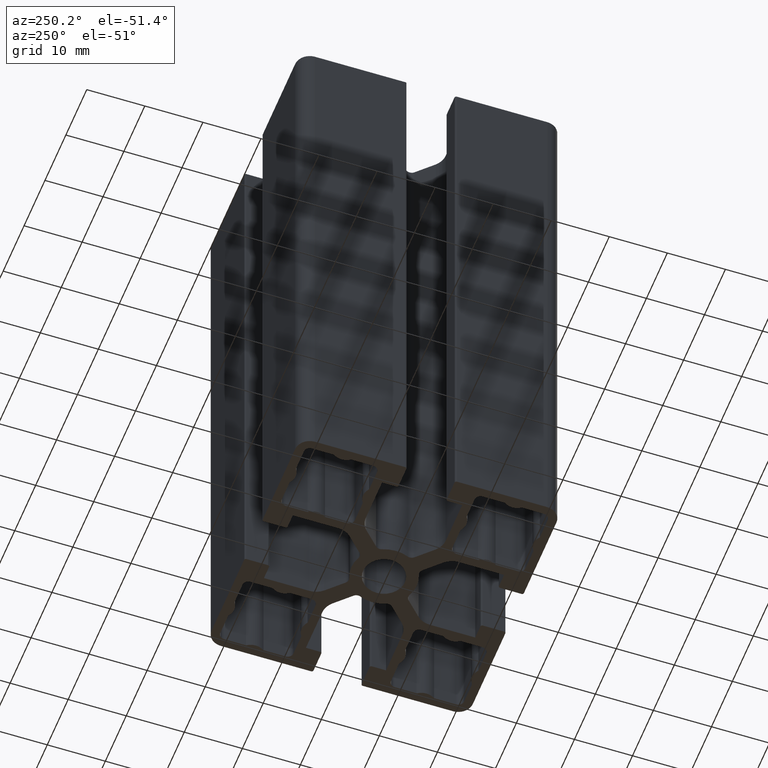
[diagram: clean part render]
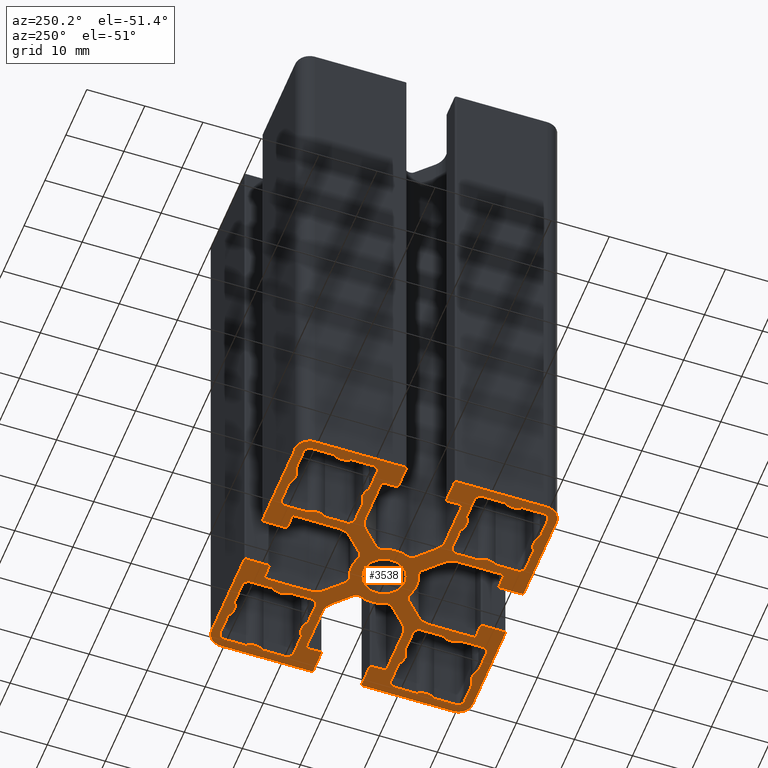
[diagram: same view with one face highlighted and labeled with its STEP entity id]
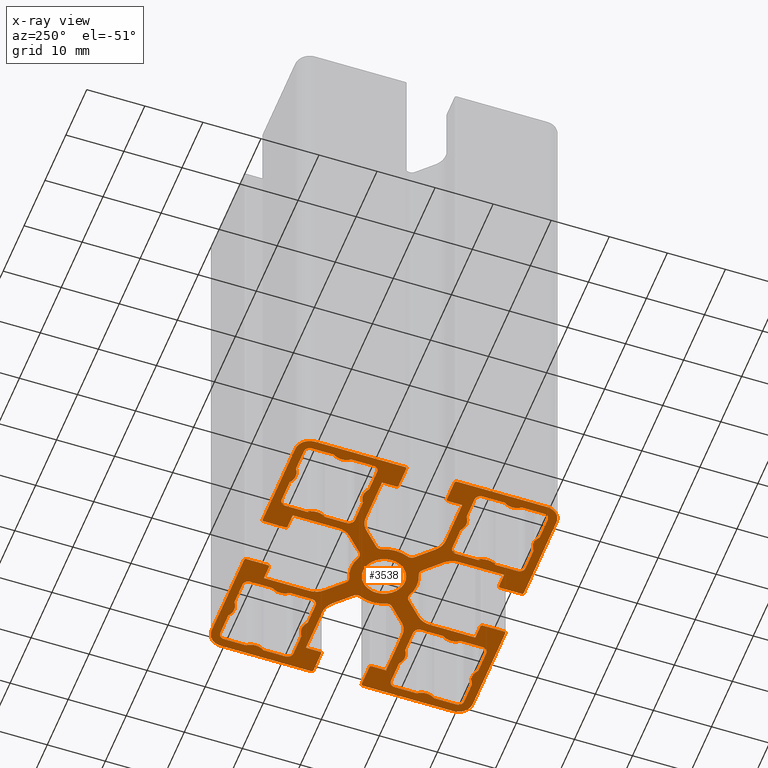
[diagram: x-ray of the same camera — body ghosted, the highlighted face saturated]
A machine part, auxiliary view. The second image highlights one B-rep face of the part: STEP entity #3538.
The next image is the same camera in x-ray: the body ghosted, the highlighted face saturated — about 0% of this face is hidden behind the body in this view.
In plain terms, the highlighted planar face has unit normal (0, 0, 1).
Its self-contained STEP definition (entity closure, byte-faithful):
#16=FACE_BOUND('',#692,.T.);
#17=FACE_BOUND('',#693,.T.);
#18=FACE_BOUND('',#694,.T.);
#19=FACE_BOUND('',#695,.T.);
#20=FACE_BOUND('',#696,.T.);
#27=CIRCLE('',#3552,0.0999999999999989);
#29=CIRCLE('',#3555,2.5);
#31=CIRCLE('',#3558,0.0999999999999943);
#33=CIRCLE('',#3562,1.);
#35=CIRCLE('',#3566,0.10000000000001);
#37=CIRCLE('',#3569,2.5);
#39=CIRCLE('',#3572,0.0999999999999997);
#41=CIRCLE('',#3576,1.);
#43=CIRCLE('',#3580,0.100000000000004);
#45=CIRCLE('',#3583,2.5);
#47=CIRCLE('',#3586,0.0999999999999908);
#49=CIRCLE('',#3590,1.);
#51=CIRCLE('',#3594,0.100000000000015);
#53=CIRCLE('',#3597,2.5);
#55=CIRCLE('',#3600,0.100000000000001);
#57=CIRCLE('',#3604,1.);
#59=CIRCLE('',#3607,1.);
#61=CIRCLE('',#3611,0.100000000000002);
#63=CIRCLE('',#3614,2.5);
#65=CIRCLE('',#3617,0.0999999999999979);
#67=CIRCLE('',#3621,1.);
#69=CIRCLE('',#3625,0.100000000000011);
#71=CIRCLE('',#3628,2.5);
#73=CIRCLE('',#3631,0.0999999999999979);
#75=CIRCLE('',#3635,0.999999999999998);
#77=CIRCLE('',#3639,0.100000000000004);
#79=CIRCLE('',#3642,2.5);
#81=CIRCLE('',#3645,0.0999999999999908);
#83=CIRCLE('',#3649,1.);
#85=CIRCLE('',#3653,0.100000000000015);
#87=CIRCLE('',#3656,2.5);
#89=CIRCLE('',#3659,0.0999999999999979);
#91=CIRCLE('',#3663,2.5);
#93=CIRCLE('',#3666,0.100000000000002);
#95=CIRCLE('',#3670,1.);
#97=CIRCLE('',#3674,0.0999999999999943);
#99=CIRCLE('',#3677,2.5);
#101=CIRCLE('',#3680,0.10000000000001);
#103=CIRCLE('',#3684,1.);
#105=CIRCLE('',#3688,0.0999999999999961);
#107=CIRCLE('',#3691,2.5);
#109=CIRCLE('',#3694,0.10000000000001);
#111=CIRCLE('',#3698,1.);
#113=CIRCLE('',#3702,0.0999999999999979);
#115=CIRCLE('',#3705,2.5);
#117=CIRCLE('',#3708,0.100000000000015);
#119=CIRCLE('',#3712,1.);
#121=CIRCLE('',#3716,0.0999999999999979);
#123=CIRCLE('',#3719,3.6);
#125=CIRCLE('',#3722,5.65);
#127=CIRCLE('',#3725,0.999999999999999);
#129=CIRCLE('',#3729,3.2);
#131=CIRCLE('',#3734,0.3);
#133=CIRCLE('',#3738,0.299999999999997);
#135=CIRCLE('',#3741,0.300000000000001);
#137=CIRCLE('',#3745,0.299999999999997);
#139=CIRCLE('',#3750,3.2);
#141=CIRCLE('',#3754,1.);
#143=CIRCLE('',#3757,0.299999999999997);
#145=CIRCLE('',#3761,0.3);
#147=CIRCLE('',#3766,3.2);
#149=CIRCLE('',#3770,1.);
#151=CIRCLE('',#3773,5.65);
#153=CIRCLE('',#3776,1.);
#155=CIRCLE('',#3780,3.2);
#157=CIRCLE('',#3785,0.299999999999997);
#159=CIRCLE('',#3789,0.299999999999998);
#161=CIRCLE('',#3792,0.300000000000001);
#163=CIRCLE('',#3796,0.299999999999997);
#165=CIRCLE('',#3801,3.2);
#167=CIRCLE('',#3805,1.);
#169=CIRCLE('',#3808,5.65);
#171=CIRCLE('',#3811,1.);
#173=CIRCLE('',#3815,3.2);
#175=CIRCLE('',#3820,0.300000000000001);
#177=CIRCLE('',#3824,0.299999999999997);
#179=CIRCLE('',#3827,0.299999999999997);
#181=CIRCLE('',#3831,0.300000000000001);
#183=CIRCLE('',#3836,3.2);
#185=CIRCLE('',#3840,0.999999999999999);
#187=CIRCLE('',#3843,5.65);
#189=CIRCLE('',#3846,1.);
#191=CIRCLE('',#3850,3.2);
#193=CIRCLE('',#3855,0.299999999999997);
#195=CIRCLE('',#3859,0.3);
#197=CIRCLE('',#3862,1.);
#199=CIRCLE('',#3866,0.0999999999999979);
#201=CIRCLE('',#3869,2.5);
#203=CIRCLE('',#3872,0.100000000000015);
#205=CIRCLE('',#3876,1.);
#207=CIRCLE('',#3880,0.0999999999999979);
#209=CIRCLE('',#3883,2.5);
#211=CIRCLE('',#3886,0.100000000000002);
#213=CIRCLE('',#3890,1.);
#215=CIRCLE('',#3894,0.0999999999999997);
#217=CIRCLE('',#3897,2.5);
#219=CIRCLE('',#3900,0.100000000000011);
#221=CIRCLE('',#3904,1.);
#223=CIRCLE('',#3908,0.0999999999999925);
#225=CIRCLE('',#3911,2.49999999999999);
#227=CIRCLE('',#3914,0.100000000000011);
#228=CIRCLE('',#3922,2.5);
#229=CIRCLE('',#3923,2.5);
#230=CIRCLE('',#3924,2.5);
#231=CIRCLE('',#3925,2.5);
#511=FACE_OUTER_BOUND('',#691,.T.);
#691=EDGE_LOOP('',(#2912,#2913,#2914,#2915,#2916,#2917,#2918,#2919,#2920,
#2921,#2922,#2923,#2924,#2925,#2926,#2927,#2928,#2929,#2930,#2931,#2932,
#2933,#2934,#2935,#2936,#2937,#2938,#2939,#2940,#2941,#2942,#2943,#2944,
#2945,#2946,#2947,#2948,#2949,#2950,#2951,#2952,#2953,#2954,#2955,#2956,
#2957,#2958,#2959,#2960,#2961,#2962,#2963,#2964,#2965,#2966,#2967,#2968,
#2969,#2970,#2971,#2972,#2973,#2974,#2975,#2976,#2977,#2978,#2979,#2980,
#2981,#2982,#2983,#2984,#2985,#2986,#2987,#2988,#2989,#2990,#2991));
#692=EDGE_LOOP('',(#2992,#2993,#2994,#2995,#2996,#2997,#2998,#2999,#3000,
#3001,#3002,#3003,#3004,#3005,#3006,#3007,#3008,#3009,#3010,#3011,#3012,
#3013,#3014,#3015));
#693=EDGE_LOOP('',(#3016));
#694=EDGE_LOOP('',(#3017,#3018,#3019,#3020,#3021,#3022,#3023,#3024,#3025,
#3026,#3027,#3028,#3029,#3030,#3031,#3032,#3033,#3034,#3035,#3036,#3037,
#3038,#3039,#3040));
#695=EDGE_LOOP('',(#3041,#3042,#3043,#3044,#3045,#3046,#3047,#3048,#3049,
#3050,#3051,#3052,#3053,#3054,#3055,#3056,#3057,#3058,#3059,#3060,#3061,
#3062,#3063,#3064));
#696=EDGE_LOOP('',(#3065,#3066,#3067,#3068,#3069,#3070,#3071,#3072,#3073,
#3074,#3075,#3076,#3077,#3078,#3079,#3080,#3081,#3082,#3083,#3084,#3085,
#3086,#3087,#3088));
#712=LINE('',#5046,#1032);
#718=LINE('',#5070,#1038);
#722=LINE('',#5082,#1042);
#728=LINE('',#5106,#1048);
#732=LINE('',#5118,#1052);
#738=LINE('',#5142,#1058);
#742=LINE('',#5154,#1062);
#748=LINE('',#5178,#1068);
#753=LINE('',#5196,#1073);
#759=LINE('',#5220,#1079);
#763=LINE('',#5232,#1083);
#769=LINE('',#5256,#1089);
#773=LINE('',#5268,#1093);
#779=LINE('',#5292,#1099);
#783=LINE('',#5304,#1103);
#789=LINE('',#5326,#1109);
#795=LINE('',#5347,#1115);
#799=LINE('',#5359,#1119);
#805=LINE('',#5383,#1125);
#809=LINE('',#5395,#1129);
#815=LINE('',#5419,#1135);
#819=LINE('',#5431,#1139);
#825=LINE('',#5455,#1145);
#829=LINE('',#5467,#1149);
#835=LINE('',#5496,#1155);
#839=LINE('',#5508,#1159);
#842=LINE('',#5514,#1162);
#846=LINE('',#5526,#1166);
#852=LINE('',#5547,#1172);
#856=LINE('',#5559,#1176);
#859=LINE('',#5565,#1179);
#863=LINE('',#5577,#1183);
#867=LINE('',#5594,#1187);
#871=LINE('',#5606,#1191);
#874=LINE('',#5612,#1194);
#878=LINE('',#5624,#1198);
#884=LINE('',#5648,#1204);
#888=LINE('',#5660,#1208);
#891=LINE('',#5666,#1211);
#895=LINE('',#5678,#1215);
#902=LINE('',#5700,#1222);
#906=LINE('',#5712,#1226);
#909=LINE('',#5718,#1229);
#913=LINE('',#5730,#1233);
#919=LINE('',#5754,#1239);
#923=LINE('',#5766,#1243);
#926=LINE('',#5772,#1246);
#930=LINE('',#5784,#1250);
#935=LINE('',#5804,#1255);
#939=LINE('',#5816,#1259);
#942=LINE('',#5822,#1262);
#946=LINE('',#5834,#1266);
#952=LINE('',#5858,#1272);
#956=LINE('',#5870,#1276);
#959=LINE('',#5876,#1279);
#963=LINE('',#5888,#1283);
#970=LINE('',#5910,#1290);
#976=LINE('',#5934,#1296);
#980=LINE('',#5946,#1300);
#986=LINE('',#5970,#1306);
#990=LINE('',#5982,#1310);
#996=LINE('',#6006,#1316);
#1000=LINE('',#6018,#1320);
#1005=LINE('',#6039,#1325);
#1008=LINE('',#6045,#1328);
#1009=LINE('',#6048,#1329);
#1012=LINE('',#6054,#1332);
#1015=LINE('',#6060,#1335);
#1020=LINE('',#6069,#1340);
#1021=LINE('',#6073,#1341);
#1022=LINE('',#6077,#1342);
#1023=LINE('',#6080,#1343);
#1032=VECTOR('',#3944,3.76702902832445);
#1038=VECTOR('',#3970,3.76702902832443);
#1042=VECTOR('',#3982,3.76702902832442);
#1048=VECTOR('',#4008,3.76702902832441);
#1052=VECTOR('',#4020,3.76702902832443);
#1058=VECTOR('',#4046,3.76702902832442);
#1062=VECTOR('',#4058,3.76702902832443);
#1068=VECTOR('',#4084,3.7670290283244);
#1073=VECTOR('',#4103,3.76702902832445);
#1079=VECTOR('',#4129,3.76702902832443);
#1083=VECTOR('',#4141,3.76702902832442);
#1089=VECTOR('',#4167,3.76702902832441);
#1093=VECTOR('',#4179,3.76702902832443);
#1099=VECTOR('',#4205,3.76702902832442);
#1103=VECTOR('',#4217,3.76702902832443);
#1109=VECTOR('',#4243,3.7670290283244);
#1115=VECTOR('',#4263,3.76702902832443);
#1119=VECTOR('',#4275,3.76702902832442);
#1125=VECTOR('',#4301,3.76702902832441);
#1129=VECTOR('',#4313,3.76702902832444);
#1135=VECTOR('',#4339,3.76702902832442);
#1139=VECTOR('',#4351,3.76702902832443);
#1145=VECTOR('',#4377,3.7670290283244);
#1149=VECTOR('',#4389,3.76702902832445);
#1155=VECTOR('',#4421,3.77040712605057);
#1159=VECTOR('',#4433,7.85319625684647);
#1162=VECTOR('',#4438,2.45);
#1166=VECTOR('',#4450,3.7);
#1172=VECTOR('',#4470,3.70000000000001);
#1176=VECTOR('',#4482,2.45);
#1179=VECTOR('',#4487,7.85319625684646);
#1183=VECTOR('',#4499,3.77040712605057);
#1187=VECTOR('',#4517,3.7);
#1191=VECTOR('',#4529,2.45);
#1194=VECTOR('',#4534,7.85319625684647);
#1198=VECTOR('',#4546,3.77040712605057);
#1204=VECTOR('',#4572,3.77040712605057);
#1208=VECTOR('',#4584,7.85319625684646);
#1211=VECTOR('',#4589,2.45);
#1215=VECTOR('',#4601,3.70000000000001);
#1222=VECTOR('',#4622,3.70000000000001);
#1226=VECTOR('',#4634,2.45);
#1229=VECTOR('',#4639,7.85319625684646);
#1233=VECTOR('',#4651,3.77040712605057);
#1239=VECTOR('',#4677,3.77040712605057);
#1243=VECTOR('',#4689,7.85319625684647);
#1246=VECTOR('',#4694,2.45);
#1250=VECTOR('',#4706,3.7);
#1255=VECTOR('',#4725,3.7);
#1259=VECTOR('',#4737,2.45);
#1262=VECTOR('',#4742,7.85319625684647);
#1266=VECTOR('',#4754,3.77040712605057);
#1272=VECTOR('',#4780,3.77040712605057);
#1276=VECTOR('',#4792,7.85319625684646);
#1279=VECTOR('',#4797,2.45);
#1283=VECTOR('',#4809,3.70000000000001);
#1290=VECTOR('',#4830,3.76702902832443);
#1296=VECTOR('',#4856,3.7670290283244);
#1300=VECTOR('',#4868,3.76702902832445);
#1306=VECTOR('',#4894,3.76702902832443);
#1310=VECTOR('',#4906,3.76702902832442);
#1316=VECTOR('',#4932,3.76702902832441);
#1320=VECTOR('',#4944,3.76702902832444);
#1325=VECTOR('',#4969,3.76702902832442);
#1328=VECTOR('',#4974,15.55);
#1329=VECTOR('',#4977,15.55);
#1332=VECTOR('',#4982,15.55);
#1335=VECTOR('',#4987,15.55);
#1340=VECTOR('',#4994,15.55);
#1341=VECTOR('',#4999,15.55);
#1342=VECTOR('',#5004,15.55);
#1343=VECTOR('',#5007,15.55);
#1352=VERTEX_POINT('',#5043);
#1353=VERTEX_POINT('',#5045);
#1355=VERTEX_POINT('',#5051);
#1357=VERTEX_POINT('',#5057);
#1359=VERTEX_POINT('',#5063);
#1361=VERTEX_POINT('',#5069);
#1363=VERTEX_POINT('',#5075);
#1365=VERTEX_POINT('',#5081);
#1367=VERTEX_POINT('',#5087);
#1369=VERTEX_POINT('',#5093);
#1371=VERTEX_POINT('',#5099);
#1373=VERTEX_POINT('',#5105);
#1375=VERTEX_POINT('',#5111);
#1377=VERTEX_POINT('',#5117);
#1379=VERTEX_POINT('',#5123);
#1381=VERTEX_POINT('',#5129);
#1383=VERTEX_POINT('',#5135);
#1385=VERTEX_POINT('',#5141);
#1387=VERTEX_POINT('',#5147);
#1389=VERTEX_POINT('',#5153);
#1391=VERTEX_POINT('',#5159);
#1393=VERTEX_POINT('',#5165);
#1395=VERTEX_POINT('',#5171);
#1397=VERTEX_POINT('',#5177);
#1400=VERTEX_POINT('',#5187);
#1401=VERTEX_POINT('',#5189);
#1403=VERTEX_POINT('',#5195);
#1405=VERTEX_POINT('',#5201);
#1407=VERTEX_POINT('',#5207);
#1409=VERTEX_POINT('',#5213);
#1411=VERTEX_POINT('',#5219);
#1413=VERTEX_POINT('',#5225);
#1415=VERTEX_POINT('',#5231);
#1417=VERTEX_POINT('',#5237);
#1419=VERTEX_POINT('',#5243);
#1421=VERTEX_POINT('',#5249);
#1423=VERTEX_POINT('',#5255);
#1425=VERTEX_POINT('',#5261);
#1427=VERTEX_POINT('',#5267);
#1429=VERTEX_POINT('',#5273);
#1431=VERTEX_POINT('',#5279);
#1433=VERTEX_POINT('',#5285);
#1435=VERTEX_POINT('',#5291);
#1437=VERTEX_POINT('',#5297);
#1439=VERTEX_POINT('',#5303);
#1441=VERTEX_POINT('',#5309);
#1443=VERTEX_POINT('',#5315);
#1445=VERTEX_POINT('',#5321);
#1448=VERTEX_POINT('',#5331);
#1449=VERTEX_POINT('',#5333);
#1451=VERTEX_POINT('',#5339);
#1453=VERTEX_POINT('',#5345);
#1455=VERTEX_POINT('',#5351);
#1457=VERTEX_POINT('',#5357);
#1459=VERTEX_POINT('',#5363);
#1461=VERTEX_POINT('',#5369);
#1463=VERTEX_POINT('',#5375);
#1465=VERTEX_POINT('',#5381);
#1467=VERTEX_POINT('',#5387);
#1469=VERTEX_POINT('',#5393);
#1471=VERTEX_POINT('',#5399);
#1473=VERTEX_POINT('',#5405);
#1475=VERTEX_POINT('',#5411);
#1477=VERTEX_POINT('',#5417);
#1479=VERTEX_POINT('',#5423);
#1481=VERTEX_POINT('',#5429);
#1483=VERTEX_POINT('',#5435);
#1485=VERTEX_POINT('',#5441);
#1487=VERTEX_POINT('',#5447);
#1489=VERTEX_POINT('',#5453);
#1491=VERTEX_POINT('',#5459);
#1493=VERTEX_POINT('',#5465);
#1495=VERTEX_POINT('',#5474);
#1498=VERTEX_POINT('',#5480);
#1499=VERTEX_POINT('',#5482);
#1501=VERTEX_POINT('',#5488);
#1503=VERTEX_POINT('',#5494);
#1505=VERTEX_POINT('',#5500);
#1507=VERTEX_POINT('',#5506);
#1509=VERTEX_POINT('',#5512);
#1511=VERTEX_POINT('',#5518);
#1513=VERTEX_POINT('',#5524);
#1515=VERTEX_POINT('',#5530);
#1518=VERTEX_POINT('',#5537);
#1519=VERTEX_POINT('',#5539);
#1521=VERTEX_POINT('',#5545);
#1523=VERTEX_POINT('',#5551);
#1525=VERTEX_POINT('',#5557);
#1527=VERTEX_POINT('',#5563);
#1529=VERTEX_POINT('',#5569);
#1531=VERTEX_POINT('',#5575);
#1534=VERTEX_POINT('',#5585);
#1535=VERTEX_POINT('',#5587);
#1537=VERTEX_POINT('',#5593);
#1539=VERTEX_POINT('',#5599);
#1541=VERTEX_POINT('',#5605);
#1543=VERTEX_POINT('',#5611);
#1545=VERTEX_POINT('',#5617);
#1547=VERTEX_POINT('',#5623);
#1549=VERTEX_POINT('',#5629);
#1551=VERTEX_POINT('',#5635);
#1553=VERTEX_POINT('',#5641);
#1555=VERTEX_POINT('',#5647);
#1557=VERTEX_POINT('',#5653);
#1559=VERTEX_POINT('',#5659);
#1561=VERTEX_POINT('',#5665);
#1563=VERTEX_POINT('',#5671);
#1565=VERTEX_POINT('',#5677);
#1567=VERTEX_POINT('',#5683);
#1570=VERTEX_POINT('',#5690);
#1571=VERTEX_POINT('',#5692);
#1573=VERTEX_POINT('',#5698);
#1575=VERTEX_POINT('',#5704);
#1577=VERTEX_POINT('',#5710);
#1579=VERTEX_POINT('',#5716);
#1581=VERTEX_POINT('',#5722);
#1583=VERTEX_POINT('',#5728);
#1585=VERTEX_POINT('',#5734);
#1587=VERTEX_POINT('',#5740);
#1589=VERTEX_POINT('',#5746);
#1591=VERTEX_POINT('',#5752);
#1593=VERTEX_POINT('',#5758);
#1595=VERTEX_POINT('',#5764);
#1597=VERTEX_POINT('',#5770);
#1599=VERTEX_POINT('',#5776);
#1601=VERTEX_POINT('',#5782);
#1603=VERTEX_POINT('',#5788);
#1606=VERTEX_POINT('',#5795);
#1607=VERTEX_POINT('',#5797);
#1609=VERTEX_POINT('',#5803);
#1611=VERTEX_POINT('',#5809);
#1613=VERTEX_POINT('',#5815);
#1615=VERTEX_POINT('',#5821);
#1617=VERTEX_POINT('',#5827);
#1619=VERTEX_POINT('',#5833);
#1621=VERTEX_POINT('',#5839);
#1623=VERTEX_POINT('',#5845);
#1625=VERTEX_POINT('',#5851);
#1627=VERTEX_POINT('',#5857);
#1629=VERTEX_POINT('',#5863);
#1631=VERTEX_POINT('',#5869);
#1633=VERTEX_POINT('',#5875);
#1635=VERTEX_POINT('',#5881);
#1637=VERTEX_POINT('',#5887);
#1639=VERTEX_POINT('',#5893);
#1642=VERTEX_POINT('',#5900);
#1643=VERTEX_POINT('',#5902);
#1645=VERTEX_POINT('',#5908);
#1647=VERTEX_POINT('',#5914);
#1649=VERTEX_POINT('',#5920);
#1651=VERTEX_POINT('',#5926);
#1653=VERTEX_POINT('',#5932);
#1655=VERTEX_POINT('',#5938);
#1657=VERTEX_POINT('',#5944);
#1659=VERTEX_POINT('',#5950);
#1661=VERTEX_POINT('',#5956);
#1663=VERTEX_POINT('',#5962);
#1665=VERTEX_POINT('',#5968);
#1667=VERTEX_POINT('',#5974);
#1669=VERTEX_POINT('',#5980);
#1671=VERTEX_POINT('',#5986);
#1673=VERTEX_POINT('',#5992);
#1675=VERTEX_POINT('',#5998);
#1677=VERTEX_POINT('',#6004);
#1679=VERTEX_POINT('',#6010);
#1681=VERTEX_POINT('',#6016);
#1683=VERTEX_POINT('',#6022);
#1685=VERTEX_POINT('',#6028);
#1687=VERTEX_POINT('',#6034);
#1689=VERTEX_POINT('',#6043);
#1690=VERTEX_POINT('',#6047);
#1692=VERTEX_POINT('',#6053);
#1694=VERTEX_POINT('',#6059);
#1697=VERTEX_POINT('',#6067);
#1698=VERTEX_POINT('',#6072);
#1699=VERTEX_POINT('',#6076);
#1700=VERTEX_POINT('',#6078);
#1706=EDGE_CURVE('',#1353,#1352,#712,.T.);
#1709=EDGE_CURVE('',#1355,#1353,#27,.T.);
#1712=EDGE_CURVE('',#1357,#1355,#29,.T.);
#1715=EDGE_CURVE('',#1359,#1357,#31,.T.);
#1718=EDGE_CURVE('',#1361,#1359,#718,.T.);
#1721=EDGE_CURVE('',#1363,#1361,#33,.T.);
#1724=EDGE_CURVE('',#1365,#1363,#722,.T.);
#1727=EDGE_CURVE('',#1367,#1365,#35,.T.);
#1730=EDGE_CURVE('',#1369,#1367,#37,.T.);
#1733=EDGE_CURVE('',#1371,#1369,#39,.T.);
#1736=EDGE_CURVE('',#1373,#1371,#728,.T.);
#1739=EDGE_CURVE('',#1375,#1373,#41,.T.);
#1742=EDGE_CURVE('',#1377,#1375,#732,.T.);
#1745=EDGE_CURVE('',#1379,#1377,#43,.T.);
#1748=EDGE_CURVE('',#1381,#1379,#45,.T.);
#1751=EDGE_CURVE('',#1383,#1381,#47,.T.);
#1754=EDGE_CURVE('',#1385,#1383,#738,.T.);
#1757=EDGE_CURVE('',#1387,#1385,#49,.T.);
#1760=EDGE_CURVE('',#1389,#1387,#742,.T.);
#1763=EDGE_CURVE('',#1391,#1389,#51,.T.);
#1766=EDGE_CURVE('',#1393,#1391,#53,.T.);
#1769=EDGE_CURVE('',#1395,#1393,#55,.T.);
#1772=EDGE_CURVE('',#1397,#1395,#748,.T.);
#1775=EDGE_CURVE('',#1352,#1397,#57,.T.);
#1778=EDGE_CURVE('',#1401,#1400,#59,.T.);
#1781=EDGE_CURVE('',#1403,#1401,#753,.T.);
#1784=EDGE_CURVE('',#1405,#1403,#61,.T.);
#1787=EDGE_CURVE('',#1407,#1405,#63,.T.);
#1790=EDGE_CURVE('',#1409,#1407,#65,.T.);
#1793=EDGE_CURVE('',#1411,#1409,#759,.T.);
#1796=EDGE_CURVE('',#1413,#1411,#67,.T.);
#1799=EDGE_CURVE('',#1415,#1413,#763,.T.);
#1802=EDGE_CURVE('',#1417,#1415,#69,.T.);
#1805=EDGE_CURVE('',#1419,#1417,#71,.T.);
#1808=EDGE_CURVE('',#1421,#1419,#73,.T.);
#1811=EDGE_CURVE('',#1423,#1421,#769,.T.);
#1814=EDGE_CURVE('',#1425,#1423,#75,.T.);
#1817=EDGE_CURVE('',#1427,#1425,#773,.T.);
#1820=EDGE_CURVE('',#1429,#1427,#77,.T.);
#1823=EDGE_CURVE('',#1431,#1429,#79,.T.);
#1826=EDGE_CURVE('',#1433,#1431,#81,.T.);
#1829=EDGE_CURVE('',#1435,#1433,#779,.T.);
#1832=EDGE_CURVE('',#1437,#1435,#83,.T.);
#1835=EDGE_CURVE('',#1439,#1437,#783,.T.);
#1838=EDGE_CURVE('',#1441,#1439,#85,.T.);
#1841=EDGE_CURVE('',#1443,#1441,#87,.T.);
#1844=EDGE_CURVE('',#1445,#1443,#89,.T.);
#1847=EDGE_CURVE('',#1400,#1445,#789,.T.);
#1850=EDGE_CURVE('',#1449,#1448,#91,.T.);
#1854=EDGE_CURVE('',#1448,#1451,#93,.T.);
#1857=EDGE_CURVE('',#1451,#1453,#795,.T.);
#1860=EDGE_CURVE('',#1453,#1455,#95,.T.);
#1863=EDGE_CURVE('',#1455,#1457,#799,.T.);
#1866=EDGE_CURVE('',#1457,#1459,#97,.T.);
#1869=EDGE_CURVE('',#1459,#1461,#99,.T.);
#1872=EDGE_CURVE('',#1461,#1463,#101,.T.);
#1875=EDGE_CURVE('',#1463,#1465,#805,.T.);
#1878=EDGE_CURVE('',#1465,#1467,#103,.T.);
#1881=EDGE_CURVE('',#1467,#1469,#809,.T.);
#1884=EDGE_CURVE('',#1469,#1471,#105,.T.);
#1887=EDGE_CURVE('',#1471,#1473,#107,.T.);
#1890=EDGE_CURVE('',#1473,#1475,#109,.T.);
#1893=EDGE_CURVE('',#1475,#1477,#815,.T.);
#1896=EDGE_CURVE('',#1477,#1479,#111,.T.);
#1899=EDGE_CURVE('',#1479,#1481,#819,.T.);
#1902=EDGE_CURVE('',#1481,#1483,#113,.T.);
#1905=EDGE_CURVE('',#1483,#1485,#115,.T.);
#1908=EDGE_CURVE('',#1485,#1487,#117,.T.);
#1911=EDGE_CURVE('',#1487,#1489,#825,.T.);
#1914=EDGE_CURVE('',#1489,#1491,#119,.T.);
#1917=EDGE_CURVE('',#1491,#1493,#829,.T.);
#1919=EDGE_CURVE('',#1493,#1449,#121,.T.);
#1921=EDGE_CURVE('',#1495,#1495,#123,.T.);
#1924=EDGE_CURVE('',#1499,#1498,#125,.T.);
#1928=EDGE_CURVE('',#1498,#1501,#127,.T.);
#1931=EDGE_CURVE('',#1501,#1503,#835,.T.);
#1934=EDGE_CURVE('',#1503,#1505,#129,.T.);
#1937=EDGE_CURVE('',#1505,#1507,#839,.T.);
#1940=EDGE_CURVE('',#1507,#1509,#842,.T.);
#1943=EDGE_CURVE('',#1509,#1511,#131,.T.);
#1946=EDGE_CURVE('',#1511,#1513,#846,.T.);
#1949=EDGE_CURVE('',#1513,#1515,#133,.T.);
#1952=EDGE_CURVE('',#1519,#1518,#135,.T.);
#1956=EDGE_CURVE('',#1518,#1521,#852,.T.);
#1959=EDGE_CURVE('',#1521,#1523,#137,.T.);
#1962=EDGE_CURVE('',#1523,#1525,#856,.T.);
#1965=EDGE_CURVE('',#1525,#1527,#859,.T.);
#1968=EDGE_CURVE('',#1527,#1529,#139,.T.);
#1971=EDGE_CURVE('',#1529,#1531,#863,.T.);
#1973=EDGE_CURVE('',#1531,#1499,#141,.T.);
#1976=EDGE_CURVE('',#1535,#1534,#143,.T.);
#1979=EDGE_CURVE('',#1537,#1535,#867,.T.);
#1982=EDGE_CURVE('',#1539,#1537,#145,.T.);
#1985=EDGE_CURVE('',#1541,#1539,#871,.T.);
#1988=EDGE_CURVE('',#1543,#1541,#874,.T.);
#1991=EDGE_CURVE('',#1545,#1543,#147,.T.);
#1994=EDGE_CURVE('',#1547,#1545,#878,.T.);
#1997=EDGE_CURVE('',#1549,#1547,#149,.T.);
#2000=EDGE_CURVE('',#1551,#1549,#151,.T.);
#2003=EDGE_CURVE('',#1553,#1551,#153,.T.);
#2006=EDGE_CURVE('',#1555,#1553,#884,.T.);
#2009=EDGE_CURVE('',#1557,#1555,#155,.T.);
#2012=EDGE_CURVE('',#1559,#1557,#888,.T.);
#2015=EDGE_CURVE('',#1561,#1559,#891,.T.);
#2018=EDGE_CURVE('',#1563,#1561,#157,.T.);
#2021=EDGE_CURVE('',#1565,#1563,#895,.T.);
#2024=EDGE_CURVE('',#1567,#1565,#159,.T.);
#2028=EDGE_CURVE('',#1571,#1570,#161,.T.);
#2032=EDGE_CURVE('',#1570,#1573,#902,.T.);
#2035=EDGE_CURVE('',#1573,#1575,#163,.T.);
#2038=EDGE_CURVE('',#1575,#1577,#906,.T.);
#2041=EDGE_CURVE('',#1577,#1579,#909,.T.);
#2044=EDGE_CURVE('',#1579,#1581,#165,.T.);
#2047=EDGE_CURVE('',#1581,#1583,#913,.T.);
#2050=EDGE_CURVE('',#1583,#1585,#167,.T.);
#2053=EDGE_CURVE('',#1585,#1587,#169,.T.);
#2056=EDGE_CURVE('',#1587,#1589,#171,.T.);
#2059=EDGE_CURVE('',#1589,#1591,#919,.T.);
#2062=EDGE_CURVE('',#1591,#1593,#173,.T.);
#2065=EDGE_CURVE('',#1593,#1595,#923,.T.);
#2068=EDGE_CURVE('',#1595,#1597,#926,.T.);
#2071=EDGE_CURVE('',#1597,#1599,#175,.T.);
#2074=EDGE_CURVE('',#1599,#1601,#930,.T.);
#2077=EDGE_CURVE('',#1601,#1603,#177,.T.);
#2080=EDGE_CURVE('',#1607,#1606,#179,.T.);
#2083=EDGE_CURVE('',#1609,#1607,#935,.T.);
#2086=EDGE_CURVE('',#1611,#1609,#181,.T.);
#2089=EDGE_CURVE('',#1613,#1611,#939,.T.);
#2092=EDGE_CURVE('',#1615,#1613,#942,.T.);
#2095=EDGE_CURVE('',#1617,#1615,#183,.T.);
#2098=EDGE_CURVE('',#1619,#1617,#946,.T.);
#2101=EDGE_CURVE('',#1621,#1619,#185,.T.);
#2104=EDGE_CURVE('',#1623,#1621,#187,.T.);
#2107=EDGE_CURVE('',#1625,#1623,#189,.T.);
#2110=EDGE_CURVE('',#1627,#1625,#952,.T.);
#2113=EDGE_CURVE('',#1629,#1627,#191,.T.);
#2116=EDGE_CURVE('',#1631,#1629,#956,.T.);
#2119=EDGE_CURVE('',#1633,#1631,#959,.T.);
#2122=EDGE_CURVE('',#1635,#1633,#193,.T.);
#2125=EDGE_CURVE('',#1637,#1635,#963,.T.);
#2128=EDGE_CURVE('',#1639,#1637,#195,.T.);
#2132=EDGE_CURVE('',#1643,#1642,#197,.T.);
#2136=EDGE_CURVE('',#1642,#1645,#970,.T.);
#2139=EDGE_CURVE('',#1645,#1647,#199,.T.);
#2142=EDGE_CURVE('',#1647,#1649,#201,.T.);
#2145=EDGE_CURVE('',#1649,#1651,#203,.T.);
#2148=EDGE_CURVE('',#1651,#1653,#976,.T.);
#2151=EDGE_CURVE('',#1653,#1655,#205,.T.);
#2154=EDGE_CURVE('',#1655,#1657,#980,.T.);
#2157=EDGE_CURVE('',#1657,#1659,#207,.T.);
#2160=EDGE_CURVE('',#1659,#1661,#209,.T.);
#2163=EDGE_CURVE('',#1661,#1663,#211,.T.);
#2166=EDGE_CURVE('',#1663,#1665,#986,.T.);
#2169=EDGE_CURVE('',#1665,#1667,#213,.T.);
#2172=EDGE_CURVE('',#1667,#1669,#990,.T.);
#2175=EDGE_CURVE('',#1669,#1671,#215,.T.);
#2178=EDGE_CURVE('',#1671,#1673,#217,.T.);
#2181=EDGE_CURVE('',#1673,#1675,#219,.T.);
#2184=EDGE_CURVE('',#1675,#1677,#996,.T.);
#2187=EDGE_CURVE('',#1677,#1679,#221,.T.);
#2190=EDGE_CURVE('',#1679,#1681,#1000,.T.);
#2193=EDGE_CURVE('',#1681,#1683,#223,.T.);
#2196=EDGE_CURVE('',#1683,#1685,#225,.T.);
#2199=EDGE_CURVE('',#1685,#1687,#227,.T.);
#2201=EDGE_CURVE('',#1687,#1643,#1005,.T.);
#2204=EDGE_CURVE('',#1515,#1689,#1008,.T.);
#2205=EDGE_CURVE('',#1690,#1567,#1009,.T.);
#2208=EDGE_CURVE('',#1692,#1571,#1012,.T.);
#2211=EDGE_CURVE('',#1694,#1639,#1015,.T.);
#2216=EDGE_CURVE('',#1606,#1697,#1020,.T.);
#2217=EDGE_CURVE('',#1689,#1692,#228,.T.);
#2218=EDGE_CURVE('',#1603,#1698,#1021,.T.);
#2219=EDGE_CURVE('',#1698,#1694,#229,.T.);
#2220=EDGE_CURVE('',#1697,#1690,#230,.T.);
#2221=EDGE_CURVE('',#1534,#1699,#1022,.T.);
#2222=EDGE_CURVE('',#1699,#1700,#231,.T.);
#2223=EDGE_CURVE('',#1700,#1519,#1023,.T.);
#2912=ORIENTED_EDGE('',*,*,#1952,.T.);
#2913=ORIENTED_EDGE('',*,*,#1956,.T.);
#2914=ORIENTED_EDGE('',*,*,#1959,.T.);
#2915=ORIENTED_EDGE('',*,*,#1962,.T.);
#2916=ORIENTED_EDGE('',*,*,#1965,.T.);
#2917=ORIENTED_EDGE('',*,*,#1968,.T.);
#2918=ORIENTED_EDGE('',*,*,#1971,.T.);
#2919=ORIENTED_EDGE('',*,*,#1973,.T.);
#2920=ORIENTED_EDGE('',*,*,#1924,.T.);
#2921=ORIENTED_EDGE('',*,*,#1928,.T.);
#2922=ORIENTED_EDGE('',*,*,#1931,.T.);
#2923=ORIENTED_EDGE('',*,*,#1934,.T.);
#2924=ORIENTED_EDGE('',*,*,#1937,.T.);
#2925=ORIENTED_EDGE('',*,*,#1940,.T.);
#2926=ORIENTED_EDGE('',*,*,#1943,.T.);
#2927=ORIENTED_EDGE('',*,*,#1946,.T.);
#2928=ORIENTED_EDGE('',*,*,#1949,.T.);
#2929=ORIENTED_EDGE('',*,*,#2204,.T.);
#2930=ORIENTED_EDGE('',*,*,#2217,.T.);
#2931=ORIENTED_EDGE('',*,*,#2208,.T.);
#2932=ORIENTED_EDGE('',*,*,#2028,.T.);
#2933=ORIENTED_EDGE('',*,*,#2032,.T.);
#2934=ORIENTED_EDGE('',*,*,#2035,.T.);
#2935=ORIENTED_EDGE('',*,*,#2038,.T.);
#2936=ORIENTED_EDGE('',*,*,#2041,.T.);
#2937=ORIENTED_EDGE('',*,*,#2044,.T.);
#2938=ORIENTED_EDGE('',*,*,#2047,.T.);
#2939=ORIENTED_EDGE('',*,*,#2050,.T.);
#2940=ORIENTED_EDGE('',*,*,#2053,.T.);
#2941=ORIENTED_EDGE('',*,*,#2056,.T.);
#2942=ORIENTED_EDGE('',*,*,#2059,.T.);
#2943=ORIENTED_EDGE('',*,*,#2062,.T.);
#2944=ORIENTED_EDGE('',*,*,#2065,.T.);
#2945=ORIENTED_EDGE('',*,*,#2068,.T.);
#2946=ORIENTED_EDGE('',*,*,#2071,.T.);
#2947=ORIENTED_EDGE('',*,*,#2074,.T.);
#2948=ORIENTED_EDGE('',*,*,#2077,.T.);
#2949=ORIENTED_EDGE('',*,*,#2218,.T.);
#2950=ORIENTED_EDGE('',*,*,#2219,.T.);
#2951=ORIENTED_EDGE('',*,*,#2211,.T.);
#2952=ORIENTED_EDGE('',*,*,#2128,.T.);
#2953=ORIENTED_EDGE('',*,*,#2125,.T.);
#2954=ORIENTED_EDGE('',*,*,#2122,.T.);
#2955=ORIENTED_EDGE('',*,*,#2119,.T.);
#2956=ORIENTED_EDGE('',*,*,#2116,.T.);
#2957=ORIENTED_EDGE('',*,*,#2113,.T.);
#2958=ORIENTED_EDGE('',*,*,#2110,.T.);
#2959=ORIENTED_EDGE('',*,*,#2107,.T.);
#2960=ORIENTED_EDGE('',*,*,#2104,.T.);
#2961=ORIENTED_EDGE('',*,*,#2101,.T.);
#2962=ORIENTED_EDGE('',*,*,#2098,.T.);
#2963=ORIENTED_EDGE('',*,*,#2095,.T.);
#2964=ORIENTED_EDGE('',*,*,#2092,.T.);
#2965=ORIENTED_EDGE('',*,*,#2089,.T.);
#2966=ORIENTED_EDGE('',*,*,#2086,.T.);
#2967=ORIENTED_EDGE('',*,*,#2083,.T.);
#2968=ORIENTED_EDGE('',*,*,#2080,.T.);
#2969=ORIENTED_EDGE('',*,*,#2216,.T.);
#2970=ORIENTED_EDGE('',*,*,#2220,.T.);
#2971=ORIENTED_EDGE('',*,*,#2205,.T.);
#2972=ORIENTED_EDGE('',*,*,#2024,.T.);
#2973=ORIENTED_EDGE('',*,*,#2021,.T.);
#2974=ORIENTED_EDGE('',*,*,#2018,.T.);
#2975=ORIENTED_EDGE('',*,*,#2015,.T.);
#2976=ORIENTED_EDGE('',*,*,#2012,.T.);
#2977=ORIENTED_EDGE('',*,*,#2009,.T.);
#2978=ORIENTED_EDGE('',*,*,#2006,.T.);
#2979=ORIENTED_EDGE('',*,*,#2003,.T.);
#2980=ORIENTED_EDGE('',*,*,#2000,.T.);
#2981=ORIENTED_EDGE('',*,*,#1997,.T.);
#2982=ORIENTED_EDGE('',*,*,#1994,.T.);
#2983=ORIENTED_EDGE('',*,*,#1991,.T.);
#2984=ORIENTED_EDGE('',*,*,#1988,.T.);
#2985=ORIENTED_EDGE('',*,*,#1985,.T.);
#2986=ORIENTED_EDGE('',*,*,#1982,.T.);
#2987=ORIENTED_EDGE('',*,*,#1979,.T.);
#2988=ORIENTED_EDGE('',*,*,#1976,.T.);
#2989=ORIENTED_EDGE('',*,*,#2221,.T.);
#2990=ORIENTED_EDGE('',*,*,#2222,.T.);
#2991=ORIENTED_EDGE('',*,*,#2223,.T.);
#2992=ORIENTED_EDGE('',*,*,#2132,.T.);
#2993=ORIENTED_EDGE('',*,*,#2136,.T.);
#2994=ORIENTED_EDGE('',*,*,#2139,.T.);
#2995=ORIENTED_EDGE('',*,*,#2142,.T.);
#2996=ORIENTED_EDGE('',*,*,#2145,.T.);
#2997=ORIENTED_EDGE('',*,*,#2148,.T.);
#2998=ORIENTED_EDGE('',*,*,#2151,.T.);
#2999=ORIENTED_EDGE('',*,*,#2154,.T.);
#3000=ORIENTED_EDGE('',*,*,#2157,.T.);
#3001=ORIENTED_EDGE('',*,*,#2160,.T.);
#3002=ORIENTED_EDGE('',*,*,#2163,.T.);
#3003=ORIENTED_EDGE('',*,*,#2166,.T.);
#3004=ORIENTED_EDGE('',*,*,#2169,.T.);
#3005=ORIENTED_EDGE('',*,*,#2172,.T.);
#3006=ORIENTED_EDGE('',*,*,#2175,.T.);
#3007=ORIENTED_EDGE('',*,*,#2178,.T.);
#3008=ORIENTED_EDGE('',*,*,#2181,.T.);
#3009=ORIENTED_EDGE('',*,*,#2184,.T.);
#3010=ORIENTED_EDGE('',*,*,#2187,.T.);
#3011=ORIENTED_EDGE('',*,*,#2190,.T.);
#3012=ORIENTED_EDGE('',*,*,#2193,.T.);
#3013=ORIENTED_EDGE('',*,*,#2196,.T.);
#3014=ORIENTED_EDGE('',*,*,#2199,.T.);
#3015=ORIENTED_EDGE('',*,*,#2201,.T.);
#3016=ORIENTED_EDGE('',*,*,#1921,.T.);
#3017=ORIENTED_EDGE('',*,*,#1850,.T.);
#3018=ORIENTED_EDGE('',*,*,#1854,.T.);
#3019=ORIENTED_EDGE('',*,*,#1857,.T.);
#3020=ORIENTED_EDGE('',*,*,#1860,.T.);
#3021=ORIENTED_EDGE('',*,*,#1863,.T.);
#3022=ORIENTED_EDGE('',*,*,#1866,.T.);
#3023=ORIENTED_EDGE('',*,*,#1869,.T.);
#3024=ORIENTED_EDGE('',*,*,#1872,.T.);
#3025=ORIENTED_EDGE('',*,*,#1875,.T.);
#3026=ORIENTED_EDGE('',*,*,#1878,.T.);
#3027=ORIENTED_EDGE('',*,*,#1881,.T.);
#3028=ORIENTED_EDGE('',*,*,#1884,.T.);
#3029=ORIENTED_EDGE('',*,*,#1887,.T.);
#3030=ORIENTED_EDGE('',*,*,#1890,.T.);
#3031=ORIENTED_EDGE('',*,*,#1893,.T.);
#3032=ORIENTED_EDGE('',*,*,#1896,.T.);
#3033=ORIENTED_EDGE('',*,*,#1899,.T.);
#3034=ORIENTED_EDGE('',*,*,#1902,.T.);
#3035=ORIENTED_EDGE('',*,*,#1905,.T.);
#3036=ORIENTED_EDGE('',*,*,#1908,.T.);
#3037=ORIENTED_EDGE('',*,*,#1911,.T.);
#3038=ORIENTED_EDGE('',*,*,#1914,.T.);
#3039=ORIENTED_EDGE('',*,*,#1917,.T.);
#3040=ORIENTED_EDGE('',*,*,#1919,.T.);
#3041=ORIENTED_EDGE('',*,*,#1778,.T.);
#3042=ORIENTED_EDGE('',*,*,#1847,.T.);
#3043=ORIENTED_EDGE('',*,*,#1844,.T.);
#3044=ORIENTED_EDGE('',*,*,#1841,.T.);
#3045=ORIENTED_EDGE('',*,*,#1838,.T.);
#3046=ORIENTED_EDGE('',*,*,#1835,.T.);
#3047=ORIENTED_EDGE('',*,*,#1832,.T.);
#3048=ORIENTED_EDGE('',*,*,#1829,.T.);
#3049=ORIENTED_EDGE('',*,*,#1826,.T.);
#3050=ORIENTED_EDGE('',*,*,#1823,.T.);
#3051=ORIENTED_EDGE('',*,*,#1820,.T.);
#3052=ORIENTED_EDGE('',*,*,#1817,.T.);
#3053=ORIENTED_EDGE('',*,*,#1814,.T.);
#3054=ORIENTED_EDGE('',*,*,#1811,.T.);
#3055=ORIENTED_EDGE('',*,*,#1808,.T.);
#3056=ORIENTED_EDGE('',*,*,#1805,.T.);
#3057=ORIENTED_EDGE('',*,*,#1802,.T.);
#3058=ORIENTED_EDGE('',*,*,#1799,.T.);
#3059=ORIENTED_EDGE('',*,*,#1796,.T.);
#3060=ORIENTED_EDGE('',*,*,#1793,.T.);
#3061=ORIENTED_EDGE('',*,*,#1790,.T.);
#3062=ORIENTED_EDGE('',*,*,#1787,.T.);
#3063=ORIENTED_EDGE('',*,*,#1784,.T.);
#3064=ORIENTED_EDGE('',*,*,#1781,.T.);
#3065=ORIENTED_EDGE('',*,*,#1706,.T.);
#3066=ORIENTED_EDGE('',*,*,#1775,.T.);
#3067=ORIENTED_EDGE('',*,*,#1772,.T.);
#3068=ORIENTED_EDGE('',*,*,#1769,.T.);
#3069=ORIENTED_EDGE('',*,*,#1766,.T.);
#3070=ORIENTED_EDGE('',*,*,#1763,.T.);
#3071=ORIENTED_EDGE('',*,*,#1760,.T.);
#3072=ORIENTED_EDGE('',*,*,#1757,.T.);
#3073=ORIENTED_EDGE('',*,*,#1754,.T.);
#3074=ORIENTED_EDGE('',*,*,#1751,.T.);
#3075=ORIENTED_EDGE('',*,*,#1748,.T.);
#3076=ORIENTED_EDGE('',*,*,#1745,.T.);
#3077=ORIENTED_EDGE('',*,*,#1742,.T.);
#3078=ORIENTED_EDGE('',*,*,#1739,.T.);
#3079=ORIENTED_EDGE('',*,*,#1736,.T.);
#3080=ORIENTED_EDGE('',*,*,#1733,.T.);
#3081=ORIENTED_EDGE('',*,*,#1730,.T.);
#3082=ORIENTED_EDGE('',*,*,#1727,.T.);
#3083=ORIENTED_EDGE('',*,*,#1724,.T.);
#3084=ORIENTED_EDGE('',*,*,#1721,.T.);
#3085=ORIENTED_EDGE('',*,*,#1718,.T.);
#3086=ORIENTED_EDGE('',*,*,#1715,.T.);
#3087=ORIENTED_EDGE('',*,*,#1712,.T.);
#3088=ORIENTED_EDGE('',*,*,#1709,.T.);
#3363=PLANE('',#3921);
#3538=ADVANCED_FACE('',(#511,#16,#17,#18,#19,#20),#3363,.F.);
#3552=AXIS2_PLACEMENT_3D('',#5052,#3950,#3951);
#3555=AXIS2_PLACEMENT_3D('',#5058,#3957,#3958);
#3558=AXIS2_PLACEMENT_3D('',#5064,#3964,#3965);
#3562=AXIS2_PLACEMENT_3D('',#5076,#3976,#3977);
#3566=AXIS2_PLACEMENT_3D('',#5088,#3988,#3989);
#3569=AXIS2_PLACEMENT_3D('',#5094,#3995,#3996);
#3572=AXIS2_PLACEMENT_3D('',#5100,#4002,#4003);
#3576=AXIS2_PLACEMENT_3D('',#5112,#4014,#4015);
#3580=AXIS2_PLACEMENT_3D('',#5124,#4026,#4027);
#3583=AXIS2_PLACEMENT_3D('',#5130,#4033,#4034);
#3586=AXIS2_PLACEMENT_3D('',#5136,#4040,#4041);
#3590=AXIS2_PLACEMENT_3D('',#5148,#4052,#4053);
#3594=AXIS2_PLACEMENT_3D('',#5160,#4064,#4065);
#3597=AXIS2_PLACEMENT_3D('',#5166,#4071,#4072);
#3600=AXIS2_PLACEMENT_3D('',#5172,#4078,#4079);
#3604=AXIS2_PLACEMENT_3D('',#5182,#4090,#4091);
#3607=AXIS2_PLACEMENT_3D('',#5190,#4097,#4098);
#3611=AXIS2_PLACEMENT_3D('',#5202,#4109,#4110);
#3614=AXIS2_PLACEMENT_3D('',#5208,#4116,#4117);
#3617=AXIS2_PLACEMENT_3D('',#5214,#4123,#4124);
#3621=AXIS2_PLACEMENT_3D('',#5226,#4135,#4136);
#3625=AXIS2_PLACEMENT_3D('',#5238,#4147,#4148);
#3628=AXIS2_PLACEMENT_3D('',#5244,#4154,#4155);
#3631=AXIS2_PLACEMENT_3D('',#5250,#4161,#4162);
#3635=AXIS2_PLACEMENT_3D('',#5262,#4173,#4174);
#3639=AXIS2_PLACEMENT_3D('',#5274,#4185,#4186);
#3642=AXIS2_PLACEMENT_3D('',#5280,#4192,#4193);
#3645=AXIS2_PLACEMENT_3D('',#5286,#4199,#4200);
#3649=AXIS2_PLACEMENT_3D('',#5298,#4211,#4212);
#3653=AXIS2_PLACEMENT_3D('',#5310,#4223,#4224);
#3656=AXIS2_PLACEMENT_3D('',#5316,#4230,#4231);
#3659=AXIS2_PLACEMENT_3D('',#5322,#4237,#4238);
#3663=AXIS2_PLACEMENT_3D('',#5334,#4249,#4250);
#3666=AXIS2_PLACEMENT_3D('',#5341,#4257,#4258);
#3670=AXIS2_PLACEMENT_3D('',#5353,#4269,#4270);
#3674=AXIS2_PLACEMENT_3D('',#5365,#4281,#4282);
#3677=AXIS2_PLACEMENT_3D('',#5371,#4288,#4289);
#3680=AXIS2_PLACEMENT_3D('',#5377,#4295,#4296);
#3684=AXIS2_PLACEMENT_3D('',#5389,#4307,#4308);
#3688=AXIS2_PLACEMENT_3D('',#5401,#4319,#4320);
#3691=AXIS2_PLACEMENT_3D('',#5407,#4326,#4327);
#3694=AXIS2_PLACEMENT_3D('',#5413,#4333,#4334);
#3698=AXIS2_PLACEMENT_3D('',#5425,#4345,#4346);
#3702=AXIS2_PLACEMENT_3D('',#5437,#4357,#4358);
#3705=AXIS2_PLACEMENT_3D('',#5443,#4364,#4365);
#3708=AXIS2_PLACEMENT_3D('',#5449,#4371,#4372);
#3712=AXIS2_PLACEMENT_3D('',#5461,#4383,#4384);
#3716=AXIS2_PLACEMENT_3D('',#5470,#4394,#4395);
#3719=AXIS2_PLACEMENT_3D('',#5475,#4400,#4401);
#3722=AXIS2_PLACEMENT_3D('',#5483,#4407,#4408);
#3725=AXIS2_PLACEMENT_3D('',#5490,#4415,#4416);
#3729=AXIS2_PLACEMENT_3D('',#5502,#4427,#4428);
#3734=AXIS2_PLACEMENT_3D('',#5520,#4444,#4445);
#3738=AXIS2_PLACEMENT_3D('',#5532,#4456,#4457);
#3741=AXIS2_PLACEMENT_3D('',#5540,#4463,#4464);
#3745=AXIS2_PLACEMENT_3D('',#5553,#4476,#4477);
#3750=AXIS2_PLACEMENT_3D('',#5571,#4493,#4494);
#3754=AXIS2_PLACEMENT_3D('',#5580,#4504,#4505);
#3757=AXIS2_PLACEMENT_3D('',#5588,#4511,#4512);
#3761=AXIS2_PLACEMENT_3D('',#5600,#4523,#4524);
#3766=AXIS2_PLACEMENT_3D('',#5618,#4540,#4541);
#3770=AXIS2_PLACEMENT_3D('',#5630,#4552,#4553);
#3773=AXIS2_PLACEMENT_3D('',#5636,#4559,#4560);
#3776=AXIS2_PLACEMENT_3D('',#5642,#4566,#4567);
#3780=AXIS2_PLACEMENT_3D('',#5654,#4578,#4579);
#3785=AXIS2_PLACEMENT_3D('',#5672,#4595,#4596);
#3789=AXIS2_PLACEMENT_3D('',#5684,#4607,#4608);
#3792=AXIS2_PLACEMENT_3D('',#5693,#4615,#4616);
#3796=AXIS2_PLACEMENT_3D('',#5706,#4628,#4629);
#3801=AXIS2_PLACEMENT_3D('',#5724,#4645,#4646);
#3805=AXIS2_PLACEMENT_3D('',#5736,#4657,#4658);
#3808=AXIS2_PLACEMENT_3D('',#5742,#4664,#4665);
#3811=AXIS2_PLACEMENT_3D('',#5748,#4671,#4672);
#3815=AXIS2_PLACEMENT_3D('',#5760,#4683,#4684);
#3820=AXIS2_PLACEMENT_3D('',#5778,#4700,#4701);
#3824=AXIS2_PLACEMENT_3D('',#5790,#4712,#4713);
#3827=AXIS2_PLACEMENT_3D('',#5798,#4719,#4720);
#3831=AXIS2_PLACEMENT_3D('',#5810,#4731,#4732);
#3836=AXIS2_PLACEMENT_3D('',#5828,#4748,#4749);
#3840=AXIS2_PLACEMENT_3D('',#5840,#4760,#4761);
#3843=AXIS2_PLACEMENT_3D('',#5846,#4767,#4768);
#3846=AXIS2_PLACEMENT_3D('',#5852,#4774,#4775);
#3850=AXIS2_PLACEMENT_3D('',#5864,#4786,#4787);
#3855=AXIS2_PLACEMENT_3D('',#5882,#4803,#4804);
#3859=AXIS2_PLACEMENT_3D('',#5894,#4815,#4816);
#3862=AXIS2_PLACEMENT_3D('',#5903,#4823,#4824);
#3866=AXIS2_PLACEMENT_3D('',#5916,#4836,#4837);
#3869=AXIS2_PLACEMENT_3D('',#5922,#4843,#4844);
#3872=AXIS2_PLACEMENT_3D('',#5928,#4850,#4851);
#3876=AXIS2_PLACEMENT_3D('',#5940,#4862,#4863);
#3880=AXIS2_PLACEMENT_3D('',#5952,#4874,#4875);
#3883=AXIS2_PLACEMENT_3D('',#5958,#4881,#4882);
#3886=AXIS2_PLACEMENT_3D('',#5964,#4888,#4889);
#3890=AXIS2_PLACEMENT_3D('',#5976,#4900,#4901);
#3894=AXIS2_PLACEMENT_3D('',#5988,#4912,#4913);
#3897=AXIS2_PLACEMENT_3D('',#5994,#4919,#4920);
#3900=AXIS2_PLACEMENT_3D('',#6000,#4926,#4927);
#3904=AXIS2_PLACEMENT_3D('',#6012,#4938,#4939);
#3908=AXIS2_PLACEMENT_3D('',#6024,#4950,#4951);
#3911=AXIS2_PLACEMENT_3D('',#6030,#4957,#4958);
#3914=AXIS2_PLACEMENT_3D('',#6036,#4964,#4965);
#3921=AXIS2_PLACEMENT_3D('',#6070,#4995,#4996);
#3922=AXIS2_PLACEMENT_3D('',#6071,#4997,#4998);
#3923=AXIS2_PLACEMENT_3D('',#6074,#5000,#5001);
#3924=AXIS2_PLACEMENT_3D('',#6075,#5002,#5003);
#3925=AXIS2_PLACEMENT_3D('',#6079,#5005,#5006);
#3944=DIRECTION('',(0.,1.,0.));
#3950=DIRECTION('center_axis',(0.,0.,1.));
#3951=DIRECTION('ref_axis',(-0.807692307692294,0.589604219875245,0.));
#3957=DIRECTION('center_axis',(0.,0.,-1.));
#3958=DIRECTION('ref_axis',(-0.807692307692307,0.589604219875227,0.));
#3964=DIRECTION('center_axis',(0.,0.,1.));
#3965=DIRECTION('ref_axis',(-1.,-2.22044604925046E-14,0.));
#3970=DIRECTION('',(-1.17888449096341E-15,1.,0.));
#3976=DIRECTION('center_axis',(0.,0.,1.));
#3977=DIRECTION('ref_axis',(0.,1.,0.));
#3982=DIRECTION('',(1.,-2.06304785918597E-15,0.));
#3988=DIRECTION('center_axis',(0.,0.,1.));
#3989=DIRECTION('ref_axis',(0.589604219875474,0.807692307692127,0.));
#3995=DIRECTION('center_axis',(0.,0.,-1.));
#3996=DIRECTION('ref_axis',(0.589604219875227,0.807692307692307,0.));
#4002=DIRECTION('center_axis',(0.,0.,1.));
#4003=DIRECTION('ref_axis',(-4.44089209850062E-14,1.,0.));
#4008=DIRECTION('',(1.,3.24193235014939E-15,0.));
#4014=DIRECTION('center_axis',(0.,0.,1.));
#4015=DIRECTION('ref_axis',(1.,0.,0.));
#4020=DIRECTION('',(-2.94721122740852E-16,-1.,0.));
#4026=DIRECTION('center_axis',(0.,0.,1.));
#4027=DIRECTION('ref_axis',(0.807692307692244,-0.589604219875313,0.));
#4033=DIRECTION('center_axis',(0.,0.,-1.));
#4034=DIRECTION('ref_axis',(0.807692307692307,-0.589604219875227,0.));
#4040=DIRECTION('center_axis',(0.,0.,1.));
#4041=DIRECTION('ref_axis',(1.,-2.22044604925053E-14,0.));
#4046=DIRECTION('',(3.83137459563108E-15,-1.,0.));
#4052=DIRECTION('center_axis',(0.,0.,1.));
#4053=DIRECTION('ref_axis',(0.,-1.,0.));
#4058=DIRECTION('',(-1.,0.,0.));
#4064=DIRECTION('center_axis',(0.,0.,1.));
#4065=DIRECTION('ref_axis',(-0.589604219875598,-0.807692307692037,0.));
#4071=DIRECTION('center_axis',(0.,0.,-1.));
#4072=DIRECTION('ref_axis',(-0.589604219875226,-0.807692307692308,0.));
#4078=DIRECTION('center_axis',(0.,0.,1.));
#4079=DIRECTION('ref_axis',(1.55431223447518E-13,-1.,0.));
#4084=DIRECTION('',(-1.,-7.0733069457805E-15,0.));
#4090=DIRECTION('center_axis',(0.,0.,1.));
#4091=DIRECTION('ref_axis',(-1.,0.,0.));
#4097=DIRECTION('center_axis',(0.,0.,1.));
#4098=DIRECTION('ref_axis',(1.,0.,0.));
#4103=DIRECTION('',(0.,-1.,0.));
#4109=DIRECTION('center_axis',(0.,0.,1.));
#4110=DIRECTION('ref_axis',(0.807692307692299,-0.589604219875238,0.));
#4116=DIRECTION('center_axis',(0.,0.,-1.));
#4117=DIRECTION('ref_axis',(0.807692307692308,-0.589604219875226,0.));
#4123=DIRECTION('center_axis',(0.,0.,1.));
#4124=DIRECTION('ref_axis',(1.,6.66133814775108E-14,0.));
#4129=DIRECTION('',(1.17888449096341E-15,-1.,0.));
#4135=DIRECTION('center_axis',(0.,0.,1.));
#4136=DIRECTION('ref_axis',(0.,-1.,0.));
#4141=DIRECTION('',(-1.,1.76832673644512E-15,0.));
#4147=DIRECTION('center_axis',(0.,0.,1.));
#4148=DIRECTION('ref_axis',(-0.589604219875479,-0.807692307692123,0.));
#4154=DIRECTION('center_axis',(0.,0.,-1.));
#4155=DIRECTION('ref_axis',(-0.589604219875226,-0.807692307692308,0.));
#4161=DIRECTION('center_axis',(0.,0.,1.));
#4162=DIRECTION('ref_axis',(2.22044604925036E-14,-1.,0.));
#4167=DIRECTION('',(-1.,-2.94721122740853E-15,0.));
#4173=DIRECTION('center_axis',(0.,0.,1.));
#4174=DIRECTION('ref_axis',(-1.,0.,0.));
#4179=DIRECTION('',(5.89442245481703E-16,1.,0.));
#4185=DIRECTION('center_axis',(0.,0.,1.));
#4186=DIRECTION('ref_axis',(-0.80769230769223,0.589604219875333,0.));
#4192=DIRECTION('center_axis',(0.,0.,-1.));
#4193=DIRECTION('ref_axis',(-0.807692307692308,0.589604219875227,0.));
#4199=DIRECTION('center_axis',(0.,0.,1.));
#4200=DIRECTION('ref_axis',(-1.,2.22044604925051E-14,0.));
#4205=DIRECTION('',(-3.83137459563108E-15,1.,0.));
#4211=DIRECTION('center_axis',(0.,0.,1.));
#4212=DIRECTION('ref_axis',(0.,1.,0.));
#4217=DIRECTION('',(1.,0.,0.));
#4223=DIRECTION('center_axis',(0.,0.,1.));
#4224=DIRECTION('ref_axis',(0.589604219875598,0.807692307692037,0.));
#4230=DIRECTION('center_axis',(0.,0.,-1.));
#4231=DIRECTION('ref_axis',(0.589604219875226,0.807692307692308,0.));
#4237=DIRECTION('center_axis',(0.,0.,1.));
#4238=DIRECTION('ref_axis',(-1.33226762955022E-13,1.,0.));
#4243=DIRECTION('',(1.,7.0733069457805E-15,0.));
#4249=DIRECTION('center_axis',(0.,0.,-1.));
#4250=DIRECTION('ref_axis',(0.80769230769231,-0.589604219875223,0.));
#4257=DIRECTION('center_axis',(0.,0.,1.));
#4258=DIRECTION('ref_axis',(0.807692307692273,-0.589604219875274,0.));
#4263=DIRECTION('',(-1.17888449096341E-15,-1.,0.));
#4269=DIRECTION('center_axis',(0.,0.,1.));
#4270=DIRECTION('ref_axis',(1.,0.,0.));
#4275=DIRECTION('',(1.,7.07330694578046E-15,0.));
#4281=DIRECTION('center_axis',(0.,0.,1.));
#4282=DIRECTION('ref_axis',(0.,1.,0.));
#4288=DIRECTION('center_axis',(0.,0.,-1.));
#4289=DIRECTION('ref_axis',(0.589604219875223,0.80769230769231,0.));
#4295=DIRECTION('center_axis',(0.,0.,1.));
#4296=DIRECTION('ref_axis',(0.589604219875495,0.807692307692112,0.));
#4301=DIRECTION('',(1.,1.76832673644512E-15,0.));
#4307=DIRECTION('center_axis',(0.,0.,1.));
#4308=DIRECTION('ref_axis',(-2.22044604925031E-15,1.,0.));
#4313=DIRECTION('',(-2.35776898192681E-15,1.,0.));
#4319=DIRECTION('center_axis',(0.,0.,1.));
#4320=DIRECTION('ref_axis',(-1.,2.22044604925039E-14,0.));
#4326=DIRECTION('center_axis',(0.,0.,-1.));
#4327=DIRECTION('ref_axis',(-0.807692307692311,0.589604219875223,0.));
#4333=DIRECTION('center_axis',(0.,0.,1.));
#4334=DIRECTION('ref_axis',(-0.807692307692185,0.589604219875395,0.));
#4339=DIRECTION('',(5.89442245481705E-16,1.,0.));
#4345=DIRECTION('center_axis',(0.,0.,1.));
#4346=DIRECTION('ref_axis',(-1.,0.,0.));
#4351=DIRECTION('',(-1.,-8.25219143674386E-15,0.));
#4357=DIRECTION('center_axis',(0.,0.,1.));
#4358=DIRECTION('ref_axis',(2.22044604925036E-14,-1.,0.));
#4364=DIRECTION('center_axis',(0.,0.,-1.));
#4365=DIRECTION('ref_axis',(-0.589604219875224,-0.80769230769231,0.));
#4371=DIRECTION('center_axis',(0.,0.,1.));
#4372=DIRECTION('ref_axis',(-0.589604219875583,-0.807692307692047,0.));
#4377=DIRECTION('',(-1.,0.,0.));
#4383=DIRECTION('center_axis',(0.,0.,1.));
#4384=DIRECTION('ref_axis',(0.,-1.,0.));
#4389=DIRECTION('',(0.,-1.,0.));
#4394=DIRECTION('center_axis',(0.,0.,1.));
#4395=DIRECTION('ref_axis',(1.,2.22044604925036E-14,0.));
#4400=DIRECTION('center_axis',(0.,0.,1.));
#4401=DIRECTION('ref_axis',(-1.,0.,0.));
#4407=DIRECTION('center_axis',(0.,0.,-1.));
#4408=DIRECTION('ref_axis',(-0.921065921485518,0.389406687510672,0.));
#4415=DIRECTION('center_axis',(0.,0.,1.));
#4416=DIRECTION('ref_axis',(-0.921065921485518,0.389406687510671,0.));
#4421=DIRECTION('',(0.707106781186547,-0.707106781186548,0.));
#4427=DIRECTION('center_axis',(0.,0.,1.));
#4428=DIRECTION('ref_axis',(-0.707106781186548,-0.707106781186547,0.));
#4433=DIRECTION('',(1.,-1.41372122676453E-16,0.));
#4438=DIRECTION('',(0.,1.,0.));
#4444=DIRECTION('center_axis',(0.,0.,-1.));
#4445=DIRECTION('ref_axis',(0.,-1.,0.));
#4450=DIRECTION('',(1.,-1.20024110770287E-15,0.));
#4456=DIRECTION('center_axis',(0.,0.,-1.));
#4457=DIRECTION('ref_axis',(-1.,-1.85037170770861E-15,0.));
#4463=DIRECTION('center_axis',(0.,0.,-1.));
#4464=DIRECTION('ref_axis',(0.,1.,0.));
#4470=DIRECTION('',(-1.,9.00180830777153E-16,0.));
#4476=DIRECTION('center_axis',(0.,0.,-1.));
#4477=DIRECTION('ref_axis',(1.,3.70074341541721E-15,0.));
#4482=DIRECTION('',(0.,1.,0.));
#4487=DIRECTION('',(-1.,0.,0.));
#4493=DIRECTION('center_axis',(0.,0.,1.));
#4494=DIRECTION('ref_axis',(0.,1.,0.));
#4499=DIRECTION('',(-0.707106781186547,-0.707106781186548,0.));
#4504=DIRECTION('center_axis',(0.,0.,1.));
#4505=DIRECTION('ref_axis',(-0.707106781186549,0.707106781186546,0.));
#4511=DIRECTION('center_axis',(0.,0.,-1.));
#4512=DIRECTION('ref_axis',(0.,-1.,0.));
#4517=DIRECTION('',(7.50150692314295E-16,1.,0.));
#4523=DIRECTION('center_axis',(0.,0.,-1.));
#4524=DIRECTION('ref_axis',(1.,0.,0.));
#4529=DIRECTION('',(-1.,0.,0.));
#4534=DIRECTION('',(2.82744245352905E-16,1.,0.));
#4540=DIRECTION('center_axis',(0.,0.,1.));
#4541=DIRECTION('ref_axis',(0.707106781186547,-0.707106781186548,0.));
#4546=DIRECTION('',(0.707106781186548,0.707106781186547,0.));
#4552=DIRECTION('center_axis',(0.,0.,1.));
#4553=DIRECTION('ref_axis',(-0.389406687510671,-0.921065921485518,0.));
#4559=DIRECTION('center_axis',(0.,0.,-1.));
#4560=DIRECTION('ref_axis',(-0.389406687510672,-0.921065921485518,0.));
#4566=DIRECTION('center_axis',(0.,0.,1.));
#4567=DIRECTION('ref_axis',(-0.707106781186547,-0.707106781186548,0.));
#4572=DIRECTION('',(0.707106781186548,-0.707106781186547,0.));
#4578=DIRECTION('center_axis',(0.,0.,1.));
#4579=DIRECTION('ref_axis',(-1.,0.,0.));
#4584=DIRECTION('',(-2.82744245352905E-16,-1.,0.));
#4589=DIRECTION('',(-1.,0.,0.));
#4595=DIRECTION('center_axis',(0.,0.,-1.));
#4596=DIRECTION('ref_axis',(-3.70074341541721E-15,1.,0.));
#4601=DIRECTION('',(-7.50150692314294E-16,-1.,0.));
#4607=DIRECTION('center_axis',(0.,0.,-1.));
#4608=DIRECTION('ref_axis',(-1.,0.,0.));
#4615=DIRECTION('center_axis',(0.,0.,-1.));
#4616=DIRECTION('ref_axis',(1.,0.,0.));
#4622=DIRECTION('',(4.50090415388576E-16,1.,0.));
#4628=DIRECTION('center_axis',(0.,0.,-1.));
#4629=DIRECTION('ref_axis',(0.,-1.,0.));
#4634=DIRECTION('',(1.,0.,0.));
#4639=DIRECTION('',(1.41372122676453E-16,1.,0.));
#4645=DIRECTION('center_axis',(0.,0.,1.));
#4646=DIRECTION('ref_axis',(1.,0.,0.));
#4651=DIRECTION('',(-0.707106781186548,0.707106781186547,0.));
#4657=DIRECTION('center_axis',(0.,0.,1.));
#4658=DIRECTION('ref_axis',(0.707106781186547,0.707106781186548,0.));
#4664=DIRECTION('center_axis',(0.,0.,-1.));
#4665=DIRECTION('ref_axis',(0.389406687510672,0.921065921485518,0.));
#4671=DIRECTION('center_axis',(0.,0.,1.));
#4672=DIRECTION('ref_axis',(0.389406687510671,0.921065921485518,0.));
#4677=DIRECTION('',(-0.707106781186548,-0.707106781186547,0.));
#4683=DIRECTION('center_axis',(0.,0.,1.));
#4684=DIRECTION('ref_axis',(-0.707106781186547,0.707106781186548,0.));
#4689=DIRECTION('',(-1.41372122676453E-16,-1.,0.));
#4694=DIRECTION('',(1.,0.,0.));
#4700=DIRECTION('center_axis',(0.,0.,-1.));
#4701=DIRECTION('ref_axis',(-1.,0.,0.));
#4706=DIRECTION('',(-1.05021096924001E-15,-1.,0.));
#4712=DIRECTION('center_axis',(0.,0.,-1.));
#4713=DIRECTION('ref_axis',(-5.55111512312582E-15,1.,0.));
#4719=DIRECTION('center_axis',(0.,0.,-1.));
#4720=DIRECTION('ref_axis',(1.,0.,0.));
#4725=DIRECTION('',(-1.,9.00180830777154E-16,0.));
#4731=DIRECTION('center_axis',(0.,0.,-1.));
#4732=DIRECTION('ref_axis',(0.,1.,0.));
#4737=DIRECTION('',(0.,-1.,0.));
#4742=DIRECTION('',(-1.,2.82744245352905E-16,0.));
#4748=DIRECTION('center_axis',(0.,0.,1.));
#4749=DIRECTION('ref_axis',(0.707106781186548,0.707106781186547,0.));
#4754=DIRECTION('',(-0.707106781186547,0.707106781186548,0.));
#4760=DIRECTION('center_axis',(0.,0.,1.));
#4761=DIRECTION('ref_axis',(0.921065921485519,-0.38940668751067,0.));
#4767=DIRECTION('center_axis',(0.,0.,-1.));
#4768=DIRECTION('ref_axis',(0.921065921485518,-0.389406687510672,0.));
#4774=DIRECTION('center_axis',(0.,0.,1.));
#4775=DIRECTION('ref_axis',(0.707106781186549,-0.707106781186546,0.));
#4780=DIRECTION('',(0.707106781186547,0.707106781186548,0.));
#4786=DIRECTION('center_axis',(0.,0.,1.));
#4787=DIRECTION('ref_axis',(0.,-1.,0.));
#4792=DIRECTION('',(1.,-2.82744245352905E-16,0.));
#4797=DIRECTION('',(0.,-1.,0.));
#4803=DIRECTION('center_axis',(0.,0.,-1.));
#4804=DIRECTION('ref_axis',(-1.,0.,0.));
#4809=DIRECTION('',(1.,-7.50150692314294E-16,0.));
#4815=DIRECTION('center_axis',(0.,0.,-1.));
#4816=DIRECTION('ref_axis',(0.,-1.,0.));
#4823=DIRECTION('center_axis',(0.,0.,1.));
#4824=DIRECTION('ref_axis',(1.,0.,0.));
#4830=DIRECTION('',(1.,7.07330694578045E-15,0.));
#4836=DIRECTION('center_axis',(0.,0.,1.));
#4837=DIRECTION('ref_axis',(4.44089209850072E-14,1.,0.));
#4843=DIRECTION('center_axis',(0.,0.,-1.));
#4844=DIRECTION('ref_axis',(0.589604219875225,0.807692307692309,0.));
#4850=DIRECTION('center_axis',(0.,0.,1.));
#4851=DIRECTION('ref_axis',(0.589604219875583,0.807692307692047,0.));
#4856=DIRECTION('',(1.,0.,0.));
#4862=DIRECTION('center_axis',(0.,0.,1.));
#4863=DIRECTION('ref_axis',(0.,1.,0.));
#4868=DIRECTION('',(0.,1.,0.));
#4874=DIRECTION('center_axis',(0.,0.,1.));
#4875=DIRECTION('ref_axis',(-1.,-2.22044604925036E-14,0.));
#4881=DIRECTION('center_axis',(0.,0.,-1.));
#4882=DIRECTION('ref_axis',(-0.807692307692309,0.589604219875224,0.));
#4888=DIRECTION('center_axis',(0.,0.,1.));
#4889=DIRECTION('ref_axis',(-0.807692307692273,0.589604219875274,0.));
#4894=DIRECTION('',(1.17888449096341E-15,1.,0.));
#4900=DIRECTION('center_axis',(0.,0.,1.));
#4901=DIRECTION('ref_axis',(-1.,-1.11022302462515E-15,0.));
#4906=DIRECTION('',(-1.,-7.95747031400302E-15,0.));
#4912=DIRECTION('center_axis',(0.,0.,1.));
#4913=DIRECTION('ref_axis',(-2.22044604925031E-14,-1.,0.));
#4919=DIRECTION('center_axis',(0.,0.,-1.));
#4920=DIRECTION('ref_axis',(-0.589604219875223,-0.80769230769231,0.));
#4926=DIRECTION('center_axis',(0.,0.,1.));
#4927=DIRECTION('ref_axis',(-0.589604219875485,-0.807692307692119,0.));
#4932=DIRECTION('',(-1.,-1.76832673644512E-15,0.));
#4938=DIRECTION('center_axis',(0.,0.,1.));
#4939=DIRECTION('ref_axis',(2.22044604925031E-15,-1.,0.));
#4944=DIRECTION('',(2.94721122740852E-15,-1.,0.));
#4950=DIRECTION('center_axis',(0.,0.,1.));
#4951=DIRECTION('ref_axis',(1.,-2.22044604925048E-14,0.));
#4957=DIRECTION('center_axis',(0.,0.,-1.));
#4958=DIRECTION('ref_axis',(0.80769230769231,-0.589604219875223,0.));
#4964=DIRECTION('center_axis',(0.,0.,1.));
#4965=DIRECTION('ref_axis',(0.807692307692167,-0.58960421987542,0.));
#4969=DIRECTION('',(5.89442245481705E-16,-1.,0.));
#4974=DIRECTION('',(1.11022302462516E-16,-1.,0.));
#4977=DIRECTION('',(1.,1.11022302462516E-16,0.));
#4982=DIRECTION('',(-1.,0.,0.));
#4987=DIRECTION('',(2.22044604925031E-16,1.,0.));
#4994=DIRECTION('',(2.22044604925031E-16,1.,0.));
#4995=DIRECTION('center_axis',(0.,0.,1.));
#4996=DIRECTION('ref_axis',(1.,0.,0.));
#4997=DIRECTION('center_axis',(0.,0.,-1.));
#4998=DIRECTION('ref_axis',(-2.66453525910038E-15,-1.,0.));
#4999=DIRECTION('',(-1.,0.,0.));
#5000=DIRECTION('center_axis',(0.,0.,-1.));
#5001=DIRECTION('ref_axis',(-1.,0.,0.));
#5002=DIRECTION('center_axis',(0.,0.,-1.));
#5003=DIRECTION('ref_axis',(-3.55271367880049E-15,1.,0.));
#5004=DIRECTION('',(1.,1.11022302462516E-16,0.));
#5005=DIRECTION('center_axis',(0.,0.,-1.));
#5006=DIRECTION('ref_axis',(1.,-3.55271367880051E-15,0.));
#5007=DIRECTION('',(1.11022302462516E-16,-1.,0.));
#5043=CARTESIAN_POINT('',(21.,20.,0.));
#5045=CARTESIAN_POINT('',(21.,16.2329709716755,0.));
#5046=CARTESIAN_POINT('',(21.,8.11648548583778,0.));
#5051=CARTESIAN_POINT('',(20.9807692307692,16.174010549688,0.));
#5052=CARTESIAN_POINT('Origin',(20.9,16.2329709716756,0.));
#5057=CARTESIAN_POINT('',(20.9807692307692,13.2259894503119,0.));
#5058=CARTESIAN_POINT('Origin',(23.,14.7,0.));
#5063=CARTESIAN_POINT('',(21.,13.1670290283244,0.));
#5064=CARTESIAN_POINT('Origin',(20.9,13.1670290283244,0.));
#5069=CARTESIAN_POINT('',(21.,9.39999999999996,0.));
#5070=CARTESIAN_POINT('',(21.,4.69999999999999,0.));
#5075=CARTESIAN_POINT('',(20.,8.39999999999996,0.));
#5076=CARTESIAN_POINT('Origin',(20.,9.39999999999996,0.));
#5081=CARTESIAN_POINT('',(16.2329709716756,8.39999999999997,0.));
#5082=CARTESIAN_POINT('',(8.1164854858378,8.39999999999998,0.));
#5087=CARTESIAN_POINT('',(16.1740105496881,8.41923076923075,0.));
#5088=CARTESIAN_POINT('Origin',(16.2329709716756,8.49999999999998,0.));
#5093=CARTESIAN_POINT('',(13.2259894503119,8.41923076923076,0.));
#5094=CARTESIAN_POINT('Origin',(14.7,6.39999999999999,0.));
#5099=CARTESIAN_POINT('',(13.1670290283244,8.39999999999999,0.));
#5100=CARTESIAN_POINT('Origin',(13.1670290283244,8.49999999999999,0.));
#5105=CARTESIAN_POINT('',(9.4,8.39999999999998,0.));
#5106=CARTESIAN_POINT('',(4.69999999999998,8.39999999999996,0.));
#5111=CARTESIAN_POINT('',(8.4,9.39999999999998,0.));
#5112=CARTESIAN_POINT('Origin',(9.4,9.39999999999998,0.));
#5117=CARTESIAN_POINT('',(8.4,13.1670290283244,0.));
#5118=CARTESIAN_POINT('',(8.4,6.58351451416221,0.));
#5123=CARTESIAN_POINT('',(8.41923076923078,13.2259894503119,0.));
#5124=CARTESIAN_POINT('Origin',(8.50000000000001,13.1670290283244,0.));
#5129=CARTESIAN_POINT('',(8.41923076923079,16.1740105496881,0.));
#5130=CARTESIAN_POINT('Origin',(6.40000000000001,14.7,0.));
#5135=CARTESIAN_POINT('',(8.40000000000002,16.2329709716756,0.));
#5136=CARTESIAN_POINT('Origin',(8.50000000000001,16.2329709716756,0.));
#5141=CARTESIAN_POINT('',(8.40000000000001,20.,0.));
#5142=CARTESIAN_POINT('',(8.40000000000004,10.,0.));
#5147=CARTESIAN_POINT('',(9.40000000000001,21.,0.));
#5148=CARTESIAN_POINT('Origin',(9.40000000000001,20.,0.));
#5153=CARTESIAN_POINT('',(13.1670290283244,21.,0.));
#5154=CARTESIAN_POINT('',(6.58351451416222,21.,0.));
#5159=CARTESIAN_POINT('',(13.225989450312,20.9807692307692,0.));
#5160=CARTESIAN_POINT('Origin',(13.1670290283244,20.9,0.));
#5165=CARTESIAN_POINT('',(16.1740105496881,20.9807692307692,0.));
#5166=CARTESIAN_POINT('Origin',(14.7,23.,0.));
#5171=CARTESIAN_POINT('',(16.2329709716756,21.,0.));
#5172=CARTESIAN_POINT('Origin',(16.2329709716756,20.9,0.));
#5177=CARTESIAN_POINT('',(20.,21.,0.));
#5178=CARTESIAN_POINT('',(9.99999999999993,20.9999999999999,0.));
#5182=CARTESIAN_POINT('Origin',(20.,20.,0.));
#5187=CARTESIAN_POINT('',(-20.,-21.,0.));
#5189=CARTESIAN_POINT('',(-21.,-20.,0.));
#5190=CARTESIAN_POINT('Origin',(-20.,-20.,0.));
#5195=CARTESIAN_POINT('',(-21.,-16.2329709716756,0.));
#5196=CARTESIAN_POINT('',(-21.,-8.11648548583778,0.));
#5201=CARTESIAN_POINT('',(-20.9807692307692,-16.174010549688,0.));
#5202=CARTESIAN_POINT('Origin',(-20.9,-16.2329709716756,0.));
#5207=CARTESIAN_POINT('',(-20.9807692307692,-13.2259894503119,0.));
#5208=CARTESIAN_POINT('Origin',(-23.,-14.7,0.));
#5213=CARTESIAN_POINT('',(-21.,-13.1670290283244,0.));
#5214=CARTESIAN_POINT('Origin',(-20.9,-13.1670290283244,0.));
#5219=CARTESIAN_POINT('',(-21.,-9.39999999999996,0.));
#5220=CARTESIAN_POINT('',(-21.,-4.69999999999999,0.));
#5225=CARTESIAN_POINT('',(-20.,-8.39999999999996,0.));
#5226=CARTESIAN_POINT('Origin',(-20.,-9.39999999999996,0.));
#5231=CARTESIAN_POINT('',(-16.2329709716756,-8.39999999999997,0.));
#5232=CARTESIAN_POINT('',(-8.1164854858378,-8.39999999999998,0.));
#5237=CARTESIAN_POINT('',(-16.1740105496881,-8.41923076923076,0.));
#5238=CARTESIAN_POINT('Origin',(-16.2329709716756,-8.49999999999998,0.));
#5243=CARTESIAN_POINT('',(-13.2259894503119,-8.41923076923077,0.));
#5244=CARTESIAN_POINT('Origin',(-14.7,-6.39999999999999,0.));
#5249=CARTESIAN_POINT('',(-13.1670290283244,-8.4,0.));
#5250=CARTESIAN_POINT('Origin',(-13.1670290283244,-8.49999999999999,0.));
#5255=CARTESIAN_POINT('',(-9.4,-8.39999999999998,0.));
#5256=CARTESIAN_POINT('',(-4.69999999999999,-8.39999999999997,0.));
#5261=CARTESIAN_POINT('',(-8.4,-9.39999999999998,0.));
#5262=CARTESIAN_POINT('Origin',(-9.4,-9.39999999999998,0.));
#5267=CARTESIAN_POINT('',(-8.4,-13.1670290283244,0.));
#5268=CARTESIAN_POINT('',(-8.4,-6.5835145141622,0.));
#5273=CARTESIAN_POINT('',(-8.41923076923078,-13.2259894503119,0.));
#5274=CARTESIAN_POINT('Origin',(-8.50000000000001,-13.1670290283244,0.));
#5279=CARTESIAN_POINT('',(-8.41923076923079,-16.1740105496881,0.));
#5280=CARTESIAN_POINT('Origin',(-6.40000000000001,-14.7,0.));
#5285=CARTESIAN_POINT('',(-8.40000000000002,-16.2329709716756,0.));
#5286=CARTESIAN_POINT('Origin',(-8.50000000000001,-16.2329709716756,0.));
#5291=CARTESIAN_POINT('',(-8.4,-20.,0.));
#5292=CARTESIAN_POINT('',(-8.40000000000004,-10.,0.));
#5297=CARTESIAN_POINT('',(-9.4,-21.,0.));
#5298=CARTESIAN_POINT('Origin',(-9.4,-20.,0.));
#5303=CARTESIAN_POINT('',(-13.1670290283244,-21.,0.));
#5304=CARTESIAN_POINT('',(-6.58351451416222,-21.,0.));
#5309=CARTESIAN_POINT('',(-13.225989450312,-20.9807692307692,0.));
#5310=CARTESIAN_POINT('Origin',(-13.1670290283244,-20.9,0.));
#5315=CARTESIAN_POINT('',(-16.1740105496881,-20.9807692307692,0.));
#5316=CARTESIAN_POINT('Origin',(-14.7,-23.,0.));
#5321=CARTESIAN_POINT('',(-16.2329709716756,-21.,0.));
#5322=CARTESIAN_POINT('Origin',(-16.2329709716756,-20.9,0.));
#5326=CARTESIAN_POINT('',(-9.99999999999993,-20.9999999999999,0.));
#5331=CARTESIAN_POINT('',(-20.9807692307692,13.2259894503119,0.));
#5333=CARTESIAN_POINT('',(-20.9807692307692,16.174010549688,0.));
#5334=CARTESIAN_POINT('Origin',(-23.,14.7,0.));
#5339=CARTESIAN_POINT('',(-21.,13.1670290283244,0.));
#5341=CARTESIAN_POINT('Origin',(-20.9,13.1670290283244,0.));
#5345=CARTESIAN_POINT('',(-21.,9.39999999999997,0.));
#5347=CARTESIAN_POINT('',(-21.,6.58351451416221,0.));
#5351=CARTESIAN_POINT('',(-20.,8.39999999999997,0.));
#5353=CARTESIAN_POINT('Origin',(-20.,9.39999999999997,0.));
#5357=CARTESIAN_POINT('',(-16.2329709716756,8.4,0.));
#5359=CARTESIAN_POINT('',(-10.,8.40000000000004,0.));
#5363=CARTESIAN_POINT('',(-16.1740105496881,8.41923076923076,0.));
#5365=CARTESIAN_POINT('Origin',(-16.2329709716756,8.49999999999999,0.));
#5369=CARTESIAN_POINT('',(-13.2259894503119,8.41923076923077,0.));
#5371=CARTESIAN_POINT('Origin',(-14.7,6.39999999999999,0.));
#5375=CARTESIAN_POINT('',(-13.1670290283244,8.39999999999998,0.));
#5377=CARTESIAN_POINT('Origin',(-13.1670290283244,8.49999999999999,0.));
#5381=CARTESIAN_POINT('',(-9.4,8.39999999999998,0.));
#5383=CARTESIAN_POINT('',(-6.58351451416222,8.39999999999999,0.));
#5387=CARTESIAN_POINT('',(-8.4,9.39999999999998,0.));
#5389=CARTESIAN_POINT('Origin',(-9.4,9.39999999999998,0.));
#5393=CARTESIAN_POINT('',(-8.40000000000001,13.1670290283244,0.));
#5395=CARTESIAN_POINT('',(-8.39999999999999,4.69999999999998,0.));
#5399=CARTESIAN_POINT('',(-8.41923076923077,13.2259894503119,0.));
#5401=CARTESIAN_POINT('Origin',(-8.5,13.1670290283244,0.));
#5405=CARTESIAN_POINT('',(-8.41923076923078,16.1740105496881,0.));
#5407=CARTESIAN_POINT('Origin',(-6.40000000000001,14.7,0.));
#5411=CARTESIAN_POINT('',(-8.4,16.2329709716756,0.));
#5413=CARTESIAN_POINT('Origin',(-8.50000000000001,16.2329709716756,0.));
#5417=CARTESIAN_POINT('',(-8.4,20.,0.));
#5419=CARTESIAN_POINT('',(-8.40000000000001,8.11648548583779,0.));
#5423=CARTESIAN_POINT('',(-9.4,21.,0.));
#5425=CARTESIAN_POINT('Origin',(-9.4,20.,0.));
#5429=CARTESIAN_POINT('',(-13.1670290283244,21.,0.));
#5431=CARTESIAN_POINT('',(-4.70000000000009,21.,0.));
#5435=CARTESIAN_POINT('',(-13.2259894503119,20.9807692307692,0.));
#5437=CARTESIAN_POINT('Origin',(-13.1670290283244,20.9,0.));
#5441=CARTESIAN_POINT('',(-16.1740105496881,20.9807692307692,0.));
#5443=CARTESIAN_POINT('Origin',(-14.7,23.,0.));
#5447=CARTESIAN_POINT('',(-16.2329709716756,21.,0.));
#5449=CARTESIAN_POINT('Origin',(-16.2329709716756,20.9,0.));
#5453=CARTESIAN_POINT('',(-20.,21.,0.));
#5455=CARTESIAN_POINT('',(-8.1164854858378,21.,0.));
#5459=CARTESIAN_POINT('',(-21.,20.,0.));
#5461=CARTESIAN_POINT('Origin',(-20.,20.,0.));
#5465=CARTESIAN_POINT('',(-21.,16.2329709716756,0.));
#5467=CARTESIAN_POINT('',(-21.,10.,0.));
#5470=CARTESIAN_POINT('Origin',(-20.9,16.2329709716756,0.));
#5474=CARTESIAN_POINT('',(3.6,4.40872847693047E-16,0.));
#5475=CARTESIAN_POINT('Origin',(0.,0.,0.));
#5480=CARTESIAN_POINT('',(5.20402245639318,-2.2001477844353,0.));
#5482=CARTESIAN_POINT('',(5.20402245639318,2.20014778443529,0.));
#5483=CARTESIAN_POINT('Origin',(8.88178419700125E-16,-1.55431223447522E-15,
0.));
#5488=CARTESIAN_POINT('',(5.41798159669215,-3.29666125313251,0.));
#5490=CARTESIAN_POINT('Origin',(6.12508837787869,-2.58955447194597,0.));
#5494=CARTESIAN_POINT('',(8.08406204335658,-5.96274169979695,0.));
#5496=CARTESIAN_POINT('',(3.23932088423598,-1.11800054067634,0.));
#5500=CARTESIAN_POINT('',(10.3468037431535,-6.9,0.));
#5502=CARTESIAN_POINT('Origin',(10.3468037431535,-3.7,0.));
#5506=CARTESIAN_POINT('',(18.2,-6.9,0.));
#5508=CARTESIAN_POINT('',(5.17340187157676,-6.9,0.));
#5512=CARTESIAN_POINT('',(18.2,-4.45,0.));
#5514=CARTESIAN_POINT('',(18.2,-3.45,0.));
#5518=CARTESIAN_POINT('',(18.5,-4.15,0.));
#5520=CARTESIAN_POINT('Origin',(18.5,-4.45,0.));
#5524=CARTESIAN_POINT('',(22.2,-4.15000000000001,0.));
#5526=CARTESIAN_POINT('',(9.25,-4.14999999999999,0.));
#5530=CARTESIAN_POINT('',(22.5,-4.45,0.));
#5532=CARTESIAN_POINT('Origin',(22.2,-4.45,0.));
#5537=CARTESIAN_POINT('',(22.2,4.15,0.));
#5539=CARTESIAN_POINT('',(22.5,4.45,0.));
#5540=CARTESIAN_POINT('Origin',(22.2,4.45,0.));
#5545=CARTESIAN_POINT('',(18.5,4.15,0.));
#5547=CARTESIAN_POINT('',(11.1,4.15000000000001,0.));
#5551=CARTESIAN_POINT('',(18.2,4.45,0.));
#5553=CARTESIAN_POINT('Origin',(18.5,4.45,0.));
#5557=CARTESIAN_POINT('',(18.2,6.9,0.));
#5559=CARTESIAN_POINT('',(18.2,2.225,0.));
#5563=CARTESIAN_POINT('',(10.3468037431535,6.9,0.));
#5565=CARTESIAN_POINT('',(9.1,6.9,0.));
#5569=CARTESIAN_POINT('',(8.08406204335658,5.96274169979695,0.));
#5571=CARTESIAN_POINT('Origin',(10.3468037431535,3.7,0.));
#5575=CARTESIAN_POINT('',(5.41798159669215,3.29666125313251,0.));
#5577=CARTESIAN_POINT('',(4.5723611075682,2.45104076400856,0.));
#5580=CARTESIAN_POINT('Origin',(6.12508837787869,2.58955447194596,0.));
#5585=CARTESIAN_POINT('',(4.45,22.5,0.));
#5587=CARTESIAN_POINT('',(4.15000000000001,22.2,0.));
#5588=CARTESIAN_POINT('Origin',(4.45,22.2,0.));
#5593=CARTESIAN_POINT('',(4.15,18.5,0.));
#5594=CARTESIAN_POINT('',(4.15,9.25,0.));
#5599=CARTESIAN_POINT('',(4.45,18.2,0.));
#5600=CARTESIAN_POINT('Origin',(4.45,18.5,0.));
#5605=CARTESIAN_POINT('',(6.9,18.2,0.));
#5606=CARTESIAN_POINT('',(3.45,18.2,0.));
#5611=CARTESIAN_POINT('',(6.9,10.3468037431535,0.));
#5612=CARTESIAN_POINT('',(6.9,5.17340187157677,0.));
#5617=CARTESIAN_POINT('',(5.96274169979695,8.08406204335658,0.));
#5618=CARTESIAN_POINT('Origin',(3.7,10.3468037431535,0.));
#5623=CARTESIAN_POINT('',(3.29666125313251,5.41798159669215,0.));
#5624=CARTESIAN_POINT('',(1.11800054067635,3.23932088423598,0.));
#5629=CARTESIAN_POINT('',(2.2001477844353,5.20402245639318,0.));
#5630=CARTESIAN_POINT('Origin',(2.58955447194597,6.12508837787869,0.));
#5635=CARTESIAN_POINT('',(-2.20014778443529,5.20402245639318,0.));
#5636=CARTESIAN_POINT('Origin',(1.77635683940025E-15,1.77635683940025E-15,
0.));
#5641=CARTESIAN_POINT('',(-3.29666125313251,5.41798159669215,0.));
#5642=CARTESIAN_POINT('Origin',(-2.58955447194596,6.12508837787869,0.));
#5647=CARTESIAN_POINT('',(-5.96274169979695,8.08406204335658,0.));
#5648=CARTESIAN_POINT('',(-2.45104076400857,4.5723611075682,0.));
#5653=CARTESIAN_POINT('',(-6.9,10.3468037431535,0.));
#5654=CARTESIAN_POINT('Origin',(-3.7,10.3468037431535,0.));
#5659=CARTESIAN_POINT('',(-6.9,18.2,0.));
#5660=CARTESIAN_POINT('',(-6.9,9.1,0.));
#5665=CARTESIAN_POINT('',(-4.44999999999999,18.2,0.));
#5666=CARTESIAN_POINT('',(-2.225,18.2,0.));
#5671=CARTESIAN_POINT('',(-4.15,18.5,0.));
#5672=CARTESIAN_POINT('Origin',(-4.45,18.5,0.));
#5677=CARTESIAN_POINT('',(-4.15,22.2,0.));
#5678=CARTESIAN_POINT('',(-4.15,11.1,0.));
#5683=CARTESIAN_POINT('',(-4.45,22.5,0.));
#5684=CARTESIAN_POINT('Origin',(-4.44999999999999,22.2,0.));
#5690=CARTESIAN_POINT('',(4.15,-22.2,0.));
#5692=CARTESIAN_POINT('',(4.45,-22.5,0.));
#5693=CARTESIAN_POINT('Origin',(4.45,-22.2,0.));
#5698=CARTESIAN_POINT('',(4.15,-18.5,0.));
#5700=CARTESIAN_POINT('',(4.15,-11.1,0.));
#5704=CARTESIAN_POINT('',(4.45,-18.2,0.));
#5706=CARTESIAN_POINT('Origin',(4.45,-18.5,0.));
#5710=CARTESIAN_POINT('',(6.9,-18.2,0.));
#5712=CARTESIAN_POINT('',(2.225,-18.2,0.));
#5716=CARTESIAN_POINT('',(6.9,-10.3468037431535,0.));
#5718=CARTESIAN_POINT('',(6.9,-9.1,0.));
#5722=CARTESIAN_POINT('',(5.96274169979695,-8.08406204335658,0.));
#5724=CARTESIAN_POINT('Origin',(3.7,-10.3468037431535,0.));
#5728=CARTESIAN_POINT('',(3.29666125313251,-5.41798159669215,0.));
#5730=CARTESIAN_POINT('',(2.45104076400856,-4.5723611075682,0.));
#5734=CARTESIAN_POINT('',(2.20014778443529,-5.20402245639318,0.));
#5736=CARTESIAN_POINT('Origin',(2.58955447194596,-6.12508837787869,0.));
#5740=CARTESIAN_POINT('',(-2.2001477844353,-5.20402245639318,0.));
#5742=CARTESIAN_POINT('Origin',(-1.11022302462516E-15,-8.88178419700125E-16,
0.));
#5746=CARTESIAN_POINT('',(-3.29666125313251,-5.41798159669215,0.));
#5748=CARTESIAN_POINT('Origin',(-2.58955447194597,-6.12508837787869,0.));
#5752=CARTESIAN_POINT('',(-5.96274169979695,-8.08406204335658,0.));
#5754=CARTESIAN_POINT('',(-1.11800054067635,-3.23932088423598,0.));
#5758=CARTESIAN_POINT('',(-6.9,-10.3468037431535,0.));
#5760=CARTESIAN_POINT('Origin',(-3.7,-10.3468037431535,0.));
#5764=CARTESIAN_POINT('',(-6.9,-18.2,0.));
#5766=CARTESIAN_POINT('',(-6.9,-5.17340187157677,0.));
#5770=CARTESIAN_POINT('',(-4.45,-18.2,0.));
#5772=CARTESIAN_POINT('',(-3.45,-18.2,0.));
#5776=CARTESIAN_POINT('',(-4.15,-18.5,0.));
#5778=CARTESIAN_POINT('Origin',(-4.45,-18.5,0.));
#5782=CARTESIAN_POINT('',(-4.15,-22.2,0.));
#5784=CARTESIAN_POINT('',(-4.14999999999999,-9.25,0.));
#5788=CARTESIAN_POINT('',(-4.45,-22.5,0.));
#5790=CARTESIAN_POINT('Origin',(-4.45,-22.2,0.));
#5795=CARTESIAN_POINT('',(-22.5,4.45,0.));
#5797=CARTESIAN_POINT('',(-22.2,4.15000000000001,0.));
#5798=CARTESIAN_POINT('Origin',(-22.2,4.45,0.));
#5803=CARTESIAN_POINT('',(-18.5,4.15,0.));
#5804=CARTESIAN_POINT('',(-9.25,4.15,0.));
#5809=CARTESIAN_POINT('',(-18.2,4.45,0.));
#5810=CARTESIAN_POINT('Origin',(-18.5,4.45,0.));
#5815=CARTESIAN_POINT('',(-18.2,6.90000000000001,0.));
#5816=CARTESIAN_POINT('',(-18.2,3.45,0.));
#5821=CARTESIAN_POINT('',(-10.3468037431535,6.9,0.));
#5822=CARTESIAN_POINT('',(-5.17340187157677,6.9,0.));
#5827=CARTESIAN_POINT('',(-8.08406204335658,5.96274169979695,0.));
#5828=CARTESIAN_POINT('Origin',(-10.3468037431535,3.7,0.));
#5833=CARTESIAN_POINT('',(-5.41798159669214,3.29666125313251,0.));
#5834=CARTESIAN_POINT('',(-3.23932088423598,1.11800054067635,0.));
#5839=CARTESIAN_POINT('',(-5.20402245639318,2.2001477844353,0.));
#5840=CARTESIAN_POINT('Origin',(-6.12508837787869,2.58955447194597,0.));
#5845=CARTESIAN_POINT('',(-5.20402245639318,-2.20014778443529,0.));
#5846=CARTESIAN_POINT('Origin',(1.77635683940025E-15,7.85766239548996E-16,
0.));
#5851=CARTESIAN_POINT('',(-5.41798159669215,-3.29666125313251,0.));
#5852=CARTESIAN_POINT('Origin',(-6.1250883778787,-2.58955447194596,0.));
#5857=CARTESIAN_POINT('',(-8.08406204335658,-5.96274169979695,0.));
#5858=CARTESIAN_POINT('',(-4.5723611075682,-2.45104076400856,0.));
#5863=CARTESIAN_POINT('',(-10.3468037431535,-6.9,0.));
#5864=CARTESIAN_POINT('Origin',(-10.3468037431535,-3.69999999999999,0.));
#5869=CARTESIAN_POINT('',(-18.2,-6.9,0.));
#5870=CARTESIAN_POINT('',(-9.1,-6.9,0.));
#5875=CARTESIAN_POINT('',(-18.2,-4.44999999999999,0.));
#5876=CARTESIAN_POINT('',(-18.2,-2.225,0.));
#5881=CARTESIAN_POINT('',(-18.5,-4.15,0.));
#5882=CARTESIAN_POINT('Origin',(-18.5,-4.44999999999999,0.));
#5887=CARTESIAN_POINT('',(-22.2,-4.14999999999999,0.));
#5888=CARTESIAN_POINT('',(-11.1,-4.15,0.));
#5893=CARTESIAN_POINT('',(-22.5,-4.44999999999999,0.));
#5894=CARTESIAN_POINT('Origin',(-22.2,-4.44999999999999,0.));
#5900=CARTESIAN_POINT('',(9.4,-21.,0.));
#5902=CARTESIAN_POINT('',(8.4,-20.,0.));
#5903=CARTESIAN_POINT('Origin',(9.4,-20.,0.));
#5908=CARTESIAN_POINT('',(13.1670290283244,-21.,0.));
#5910=CARTESIAN_POINT('',(4.70000000000007,-21.,0.));
#5914=CARTESIAN_POINT('',(13.225989450312,-20.9807692307692,0.));
#5916=CARTESIAN_POINT('Origin',(13.1670290283244,-20.9,0.));
#5920=CARTESIAN_POINT('',(16.1740105496881,-20.9807692307692,0.));
#5922=CARTESIAN_POINT('Origin',(14.7,-23.,0.));
#5926=CARTESIAN_POINT('',(16.2329709716756,-21.,0.));
#5928=CARTESIAN_POINT('Origin',(16.2329709716756,-20.9,0.));
#5932=CARTESIAN_POINT('',(20.,-21.,0.));
#5934=CARTESIAN_POINT('',(8.1164854858378,-21.,0.));
#5938=CARTESIAN_POINT('',(21.,-20.,0.));
#5940=CARTESIAN_POINT('Origin',(20.,-20.,0.));
#5944=CARTESIAN_POINT('',(21.,-16.2329709716756,0.));
#5946=CARTESIAN_POINT('',(21.,-10.,0.));
#5950=CARTESIAN_POINT('',(20.9807692307692,-16.174010549688,0.));
#5952=CARTESIAN_POINT('Origin',(20.9,-16.2329709716756,0.));
#5956=CARTESIAN_POINT('',(20.9807692307692,-13.2259894503119,0.));
#5958=CARTESIAN_POINT('Origin',(23.,-14.7,0.));
#5962=CARTESIAN_POINT('',(21.,-13.1670290283244,0.));
#5964=CARTESIAN_POINT('Origin',(20.9,-13.1670290283244,0.));
#5968=CARTESIAN_POINT('',(21.,-9.39999999999996,0.));
#5970=CARTESIAN_POINT('',(21.,-6.58351451416221,0.));
#5974=CARTESIAN_POINT('',(20.,-8.39999999999996,0.));
#5976=CARTESIAN_POINT('Origin',(20.,-9.39999999999996,0.));
#5980=CARTESIAN_POINT('',(16.2329709716756,-8.39999999999999,0.));
#5982=CARTESIAN_POINT('',(10.,-8.40000000000004,0.));
#5986=CARTESIAN_POINT('',(16.1740105496881,-8.41923076923076,0.));
#5988=CARTESIAN_POINT('Origin',(16.2329709716756,-8.49999999999999,0.));
#5992=CARTESIAN_POINT('',(13.2259894503119,-8.41923076923077,0.));
#5994=CARTESIAN_POINT('Origin',(14.7,-6.39999999999999,0.));
#5998=CARTESIAN_POINT('',(13.1670290283244,-8.39999999999998,0.));
#6000=CARTESIAN_POINT('Origin',(13.1670290283244,-8.49999999999999,0.));
#6004=CARTESIAN_POINT('',(9.4,-8.39999999999998,0.));
#6006=CARTESIAN_POINT('',(6.58351451416221,-8.39999999999999,0.));
#6010=CARTESIAN_POINT('',(8.4,-9.39999999999998,0.));
#6012=CARTESIAN_POINT('Origin',(9.4,-9.39999999999998,0.));
#6016=CARTESIAN_POINT('',(8.40000000000001,-13.1670290283244,0.));
#6018=CARTESIAN_POINT('',(8.39999999999998,-4.69999999999998,0.));
#6022=CARTESIAN_POINT('',(8.41923076923078,-13.2259894503119,0.));
#6024=CARTESIAN_POINT('Origin',(8.5,-13.1670290283244,0.));
#6028=CARTESIAN_POINT('',(8.41923076923079,-16.1740105496881,0.));
#6030=CARTESIAN_POINT('Origin',(6.40000000000001,-14.7,0.));
#6034=CARTESIAN_POINT('',(8.4,-16.2329709716756,0.));
#6036=CARTESIAN_POINT('Origin',(8.50000000000001,-16.2329709716756,0.));
#6039=CARTESIAN_POINT('',(8.4,-8.11648548583779,0.));
#6043=CARTESIAN_POINT('',(22.5,-20.,0.));
#6045=CARTESIAN_POINT('',(22.5,-10.,0.));
#6047=CARTESIAN_POINT('',(-20.,22.5,0.));
#6048=CARTESIAN_POINT('',(9.99999999999999,22.5,0.));
#6053=CARTESIAN_POINT('',(20.,-22.5,0.));
#6054=CARTESIAN_POINT('',(-10.,-22.5,0.));
#6059=CARTESIAN_POINT('',(-22.5,-20.,0.));
#6060=CARTESIAN_POINT('',(-22.5,10.,0.));
#6067=CARTESIAN_POINT('',(-22.5,20.,0.));
#6069=CARTESIAN_POINT('',(-22.5,10.,0.));
#6070=CARTESIAN_POINT('Origin',(-4.44089209850063E-15,2.22044604925031E-15,
0.));
#6071=CARTESIAN_POINT('Origin',(20.,-20.,0.));
#6072=CARTESIAN_POINT('',(-20.,-22.5,0.));
#6073=CARTESIAN_POINT('',(-10.,-22.5,0.));
#6074=CARTESIAN_POINT('Origin',(-20.,-20.,0.));
#6075=CARTESIAN_POINT('Origin',(-20.,20.,0.));
#6076=CARTESIAN_POINT('',(20.,22.5,0.));
#6077=CARTESIAN_POINT('',(9.99999999999999,22.5,0.));
#6078=CARTESIAN_POINT('',(22.5,20.,0.));
#6079=CARTESIAN_POINT('Origin',(20.,20.,0.));
#6080=CARTESIAN_POINT('',(22.5,-10.,0.));